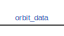
[diagram: root canvas - part 1/3, top left region]
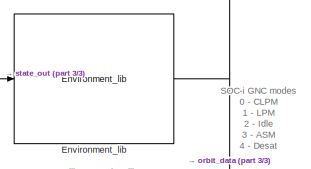
[diagram: root canvas - part 2/3, top center region]
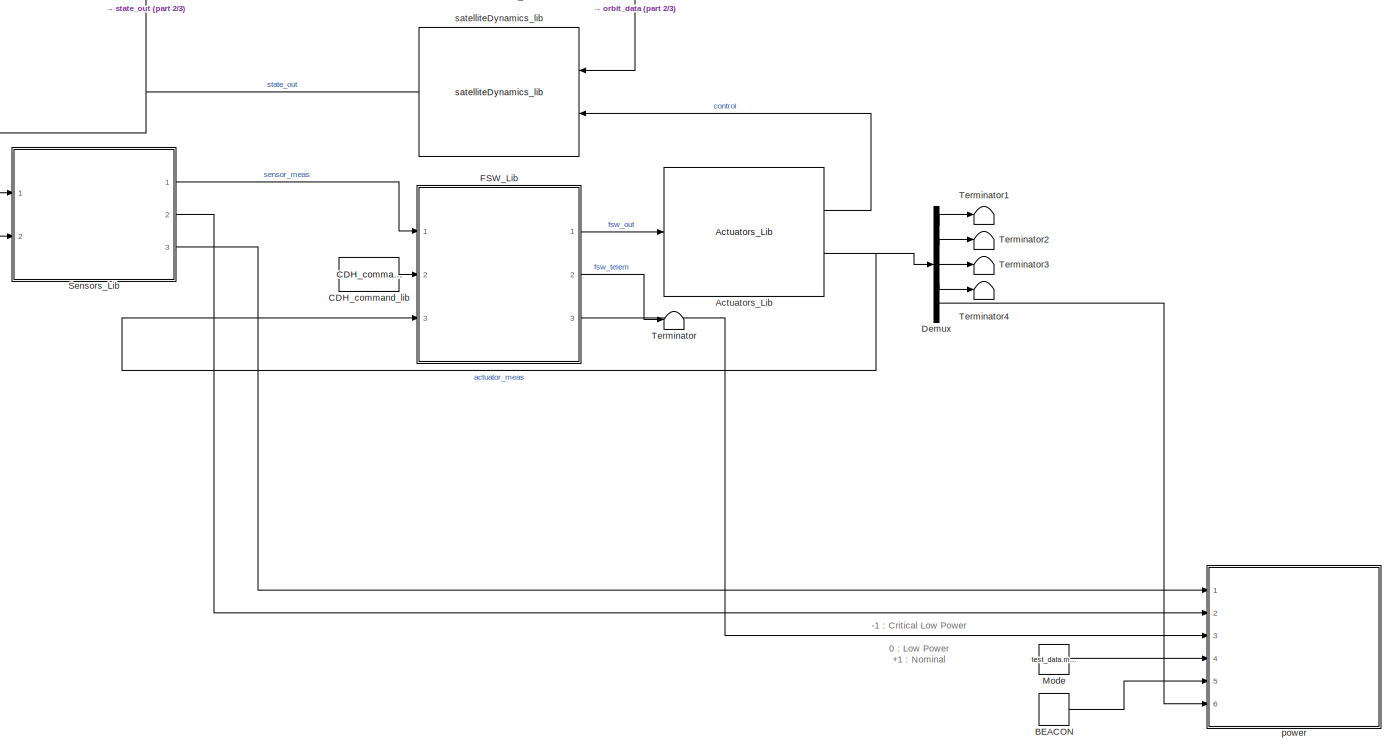
[diagram: root canvas - part 3/3, most of the canvas]
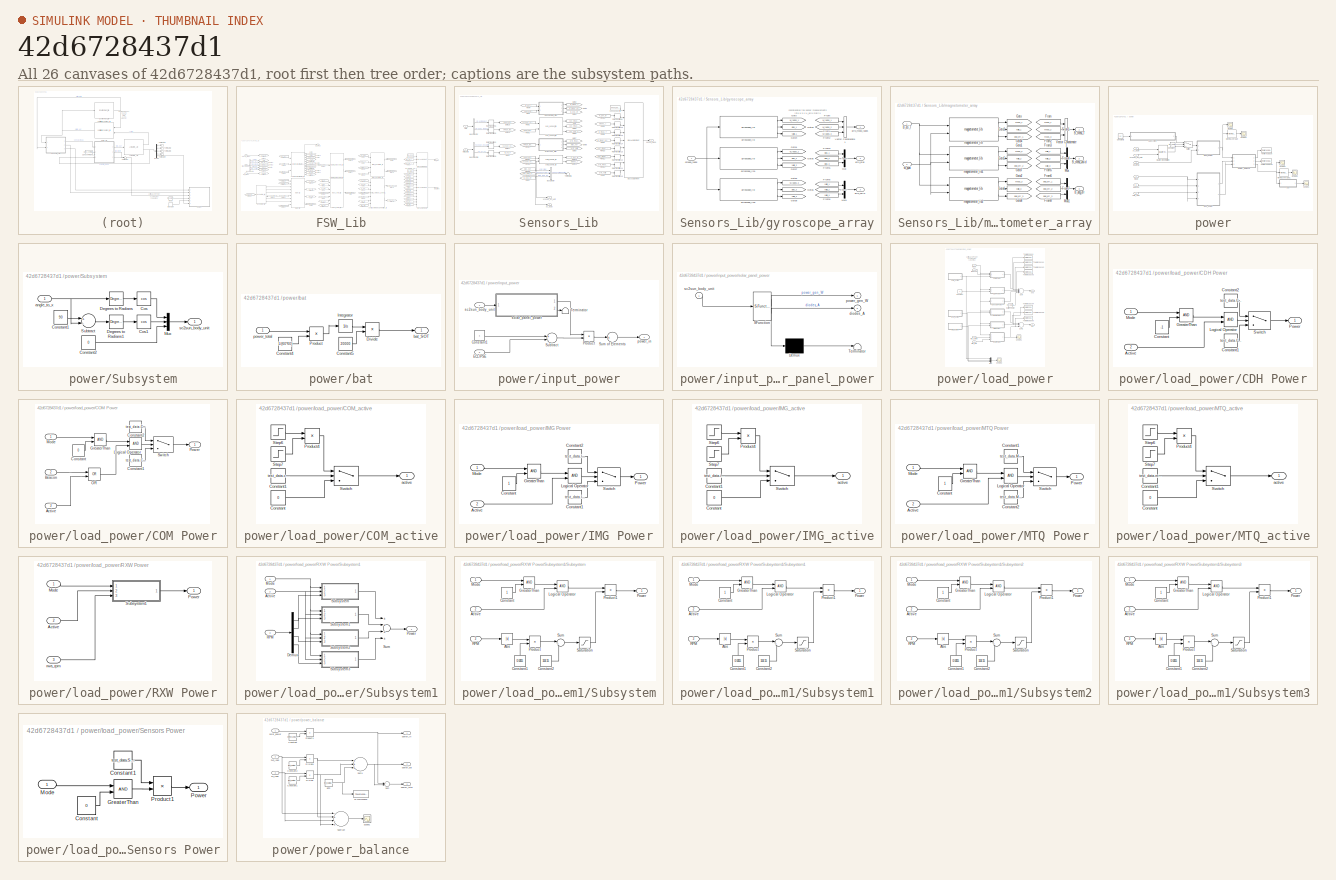
[diagram: thumbnail index - all 26 canvases of the model, root first then tree order]
MODEL slx_42d6728437d1
KIND model
CONFIG AbsTol = auto
CONFIG EnableMultiTasking = on
CONFIG FixedStep = simParams.sample_time_s
CONFIG MaxStep = auto
CONFIG MinStep = auto
CONFIG RelTol = 1e-3
CONFIG SampleTimeConstraint = Unconstrained
CONFIG Solver = FixedStepAuto
CONFIG SolverName = FixedStepAuto
CONFIG StartTime = 0.0
CONFIG StopTime = 20000
BLOCK [Reference] Actuators_Lib  REF=actuators_lib/Actuators_Lib  (lib defined in slx_c2decc952d1f)
  Ports = [1, 2]
  SourceBlock = actuators_lib/Actuators_Lib
  SourceType = SubSystem
BLOCK [DiscretePulseGenerator] BEACON
  Period = 60
  Ports = [0, 1]
  PulseType = Time based
  PulseWidth = 100 * (1.0 / 60)
BLOCK [Reference] CDH_command_lib  REF=CDH_command_lib/CDH_command_lib
  Ports = [0, 1]
  SourceBlock = CDH_command_lib/CDH_command_lib
BLOCK [Demux] Demux
  DisplayOption = bar
  Outputs = [5 4 1 1 4]
  Ports = [1, 5]
BLOCK [Reference] Environment_lib  REF=Environment_lib/Environment_lib
  Ports = [1, 1]
  SourceBlock = Environment_lib/Environment_lib
  SourceType = SubSystem
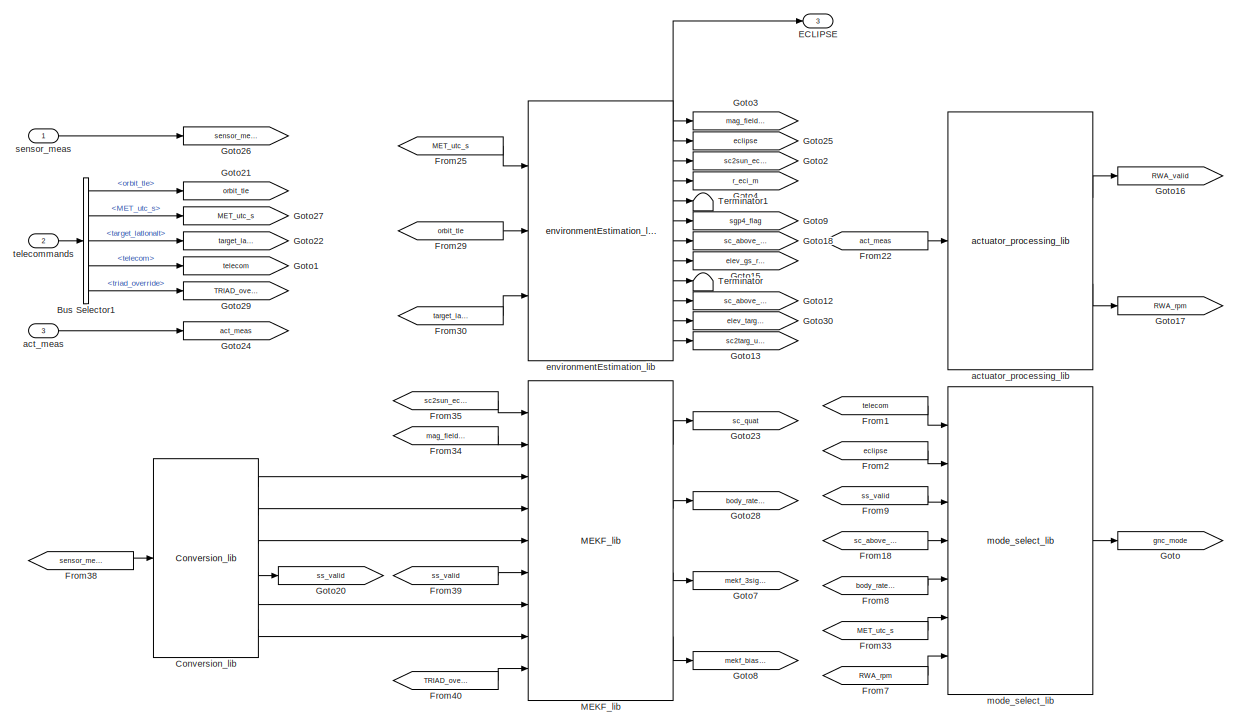
[diagram: FSW_Lib - part 1/2, left side, full height]
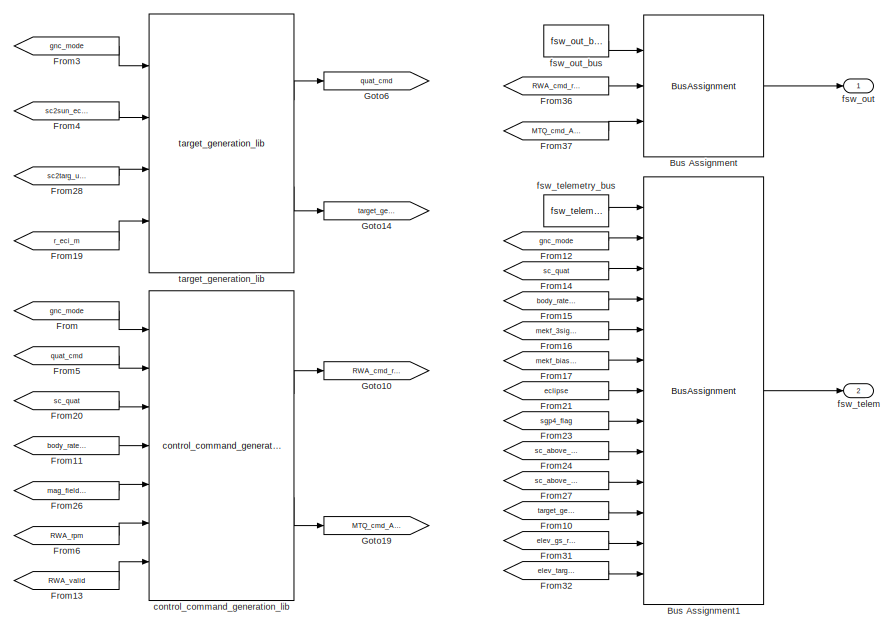
[diagram: FSW_Lib - part 2/2, right side, full height]
BLOCK [SubSystem] FSW_Lib
  AncestorBlock = FSW_Lib/FSW_Lib
  Ports = [3, 3]
  RequestExecContextInheritance = off
BLOCK [BusAssignment] FSW_Lib/Bus Assignment
  AssignedSignals = rwa_cmd_rpm,mtq_cmd_Am2
  Ports = [3, 1]
BLOCK [BusAssignment] FSW_Lib/Bus Assignment1
  AssignedSignals = gnc_mode,sc_quat,sc_body_rates_radps,mekf_3sigma_rad,mekf_bias_radps,eclipse,sgp4_flag,sc_above_gs,sc_above_targ,target_gen_flag,elev_gs_rad,elev_targ_rad
  Ports = [13, 1]
BLOCK [BusSelector] FSW_Lib/Bus Selector1
  OutputAsBus = off
  OutputSignals = orbit_tle,MET_utc_s,target_latlonalt,telecom,triad_override
  Ports = [1, 5]
BLOCK [Reference] FSW_Lib/Conversion_lib  REF=MEKF_Conversion_lib/Conversion_lib
  Ports = [1, 6]
  SourceBlock = MEKF_Conversion_lib/Conversion_lib
  SourceType = SubSystem
BLOCK [Outport] FSW_Lib/ECLIPSE
  IconDisplay = Port number
  Port = 3
BLOCK [From] FSW_Lib/From
  GotoTag = gnc_mode
BLOCK [From] FSW_Lib/From1
  GotoTag = telecom
BLOCK [From] FSW_Lib/From10
  GotoTag = target_gen_flag
BLOCK [From] FSW_Lib/From11
  GotoTag = body_rates_radps
BLOCK [From] FSW_Lib/From12
  GotoTag = gnc_mode
BLOCK [From] FSW_Lib/From13
  GotoTag = RWA_valid
BLOCK [From] FSW_Lib/From14
  GotoTag = sc_quat
BLOCK [From] FSW_Lib/From15
  GotoTag = body_rates_radps
BLOCK [From] FSW_Lib/From16
  GotoTag = mekf_3sigma_rad
BLOCK [From] FSW_Lib/From17
  GotoTag = mekf_bias_radps
BLOCK [From] FSW_Lib/From18
  GotoTag = sc_above_gs
BLOCK [From] FSW_Lib/From19
  GotoTag = r_eci_m
BLOCK [From] FSW_Lib/From2
  GotoTag = eclipse
BLOCK [From] FSW_Lib/From20
  GotoTag = sc_quat
BLOCK [From] FSW_Lib/From21
  GotoTag = eclipse
BLOCK [From] FSW_Lib/From22
  GotoTag = act_meas
BLOCK [From] FSW_Lib/From23
  GotoTag = sgp4_flag
BLOCK [From] FSW_Lib/From24
  GotoTag = sc_above_gs
BLOCK [From] FSW_Lib/From25
  GotoTag = MET_utc_s
BLOCK [From] FSW_Lib/From26
  GotoTag = mag_field_eci_T
BLOCK [From] FSW_Lib/From27
  GotoTag = sc_above_targ
BLOCK [From] FSW_Lib/From28
  GotoTag = sc2targ_unit_eci
BLOCK [From] FSW_Lib/From29
  GotoTag = orbit_tle
BLOCK [From] FSW_Lib/From3
  GotoTag = gnc_mode
BLOCK [From] FSW_Lib/From30
  GotoTag = target_latlonalt
BLOCK [From] FSW_Lib/From31
  GotoTag = elev_gs_rad
BLOCK [From] FSW_Lib/From32
  GotoTag = elev_targ_rad
BLOCK [From] FSW_Lib/From33
  GotoTag = MET_utc_s
BLOCK [From] FSW_Lib/From34
  GotoTag = mag_field_eci_T
BLOCK [From] FSW_Lib/From35
  GotoTag = sc2sun_eci_unit
BLOCK [From] FSW_Lib/From36
  GotoTag = RWA_cmd_rpm
BLOCK [From] FSW_Lib/From37
  GotoTag = MTQ_cmd_Am2
BLOCK [From] FSW_Lib/From38
  GotoTag = sensor_meas
BLOCK [From] FSW_Lib/From39
  GotoTag = ss_valid
BLOCK [From] FSW_Lib/From4
  GotoTag = sc2sun_eci_unit
BLOCK [From] FSW_Lib/From40
  GotoTag = TRIAD_override
BLOCK [From] FSW_Lib/From5
  GotoTag = quat_cmd
BLOCK [From] FSW_Lib/From6
  GotoTag = RWA_rpm
BLOCK [From] FSW_Lib/From7
  GotoTag = RWA_rpm
BLOCK [From] FSW_Lib/From8
  GotoTag = body_rates_radps
BLOCK [From] FSW_Lib/From9
  GotoTag = ss_valid
BLOCK [Goto] FSW_Lib/Goto
  GotoTag = gnc_mode
BLOCK [Goto] FSW_Lib/Goto1
  GotoTag = telecom
BLOCK [Goto] FSW_Lib/Goto10
  GotoTag = RWA_cmd_rpm
BLOCK [Goto] FSW_Lib/Goto12
  GotoTag = sc_above_targ
BLOCK [Goto] FSW_Lib/Goto13
  GotoTag = sc2targ_unit_eci
BLOCK [Goto] FSW_Lib/Goto14
  GotoTag = target_gen_flag
BLOCK [Goto] FSW_Lib/Goto15
  GotoTag = elev_gs_rad
BLOCK [Goto] FSW_Lib/Goto16
  GotoTag = RWA_valid
BLOCK [Goto] FSW_Lib/Goto17
  GotoTag = RWA_rpm
BLOCK [Goto] FSW_Lib/Goto18
  GotoTag = sc_above_gs
BLOCK [Goto] FSW_Lib/Goto19
  GotoTag = MTQ_cmd_Am2
BLOCK [Goto] FSW_Lib/Goto2
  GotoTag = sc2sun_eci_unit
BLOCK [Goto] FSW_Lib/Goto20
  GotoTag = ss_valid
BLOCK [Goto] FSW_Lib/Goto21
  GotoTag = orbit_tle
BLOCK [Goto] FSW_Lib/Goto22
  GotoTag = target_latlonalt
BLOCK [Goto] FSW_Lib/Goto23
  GotoTag = sc_quat
BLOCK [Goto] FSW_Lib/Goto24
  GotoTag = act_meas
BLOCK [Goto] FSW_Lib/Goto25
  GotoTag = eclipse
BLOCK [Goto] FSW_Lib/Goto26
  GotoTag = sensor_meas
BLOCK [Goto] FSW_Lib/Goto27
  GotoTag = MET_utc_s
BLOCK [Goto] FSW_Lib/Goto28
  GotoTag = body_rates_radps
BLOCK [Goto] FSW_Lib/Goto29
  GotoTag = TRIAD_override
BLOCK [Goto] FSW_Lib/Goto3
  GotoTag = mag_field_eci_T
BLOCK [Goto] FSW_Lib/Goto30
  GotoTag = elev_targ_rad
BLOCK [Goto] FSW_Lib/Goto4
  GotoTag = r_eci_m
BLOCK [Goto] FSW_Lib/Goto6
  GotoTag = quat_cmd
BLOCK [Goto] FSW_Lib/Goto7
  GotoTag = mekf_3sigma_rad
BLOCK [Goto] FSW_Lib/Goto8
  GotoTag = mekf_bias_radps
BLOCK [Goto] FSW_Lib/Goto9
  GotoTag = sgp4_flag
BLOCK [Reference] FSW_Lib/MEKF_lib  REF=MEKF_lib/MEKF_lib
  Ports = [9, 4]
  SourceBlock = MEKF_lib/MEKF_lib
  SourceType = SubSystem
BLOCK [Terminator] FSW_Lib/Terminator
BLOCK [Terminator] FSW_Lib/Terminator1
BLOCK [Inport] FSW_Lib/act_meas
  IconDisplay = Port number
  OutDataTypeStr = Bus: actuator_meas
  Port = 3
BLOCK [Reference] FSW_Lib/actuator_processing_lib  REF=actuator_processing_lib/actuator_processing_lib
  Ports = [1, 2]
  SourceBlock = actuator_processing_lib/actuator_processing_lib
  SourceType = SubSystem
BLOCK [Reference] FSW_Lib/control_command_generation_lib  REF=control_command_generation_lib/control_command_generation_lib
  Ports = [7, 2]
  SourceBlock = control_command_generation_lib/control_command_generation_lib
  SourceType = SubSystem
BLOCK [Reference] FSW_Lib/environmentEstimation_lib  REF=evironmentEstimation_lib/environmentEstimation_lib
  Ports = [3, 12]
  SourceBlock = evironmentEstimation_lib/environmentEstimation_lib
  SourceType = SubSystem
BLOCK [Outport] FSW_Lib/fsw_out
  IconDisplay = Port number
  OutDataTypeStr = Bus: fsw_out
BLOCK [Reference] FSW_Lib/fsw_out_bus  REF=fsw_out_bus/fsw_out_bus
  Ports = [0, 1]
  SourceBlock = fsw_out_bus/fsw_out_bus
  SourceType = SubSystem
BLOCK [Outport] FSW_Lib/fsw_telem
  IconDisplay = Port number
  OutDataTypeStr = Bus: fsw_telemetry
  Port = 2
BLOCK [Reference] FSW_Lib/fsw_telemetry_bus  REF=fsw_telemetry_bus/fsw_telemetry_bus
  Ports = [0, 1]
  SourceBlock = fsw_telemetry_bus/fsw_telemetry_bus
  SourceType = SubSystem
BLOCK [Reference] FSW_Lib/mode_select_lib  REF=mode_select_lib/mode_select_lib
  Ports = [7, 1]
  SourceBlock = mode_select_lib/mode_select_lib
  SourceType = SubSystem
BLOCK [Inport] FSW_Lib/sensor_meas
  IconDisplay = Port number
  OutDataTypeStr = Bus: sensor_bus
BLOCK [Reference] FSW_Lib/target_generation_lib  REF=target_gen_lib/target_generation_lib
  Ports = [4, 2]
  SourceBlock = target_gen_lib/target_generation_lib
  SourceType = SubSystem
BLOCK [Inport] FSW_Lib/telecommands
  IconDisplay = Port number
  OutDataTypeStr = Bus: cdh_data
  Port = 2
BLOCK [Constant] Mode
  Value = test_data.mode
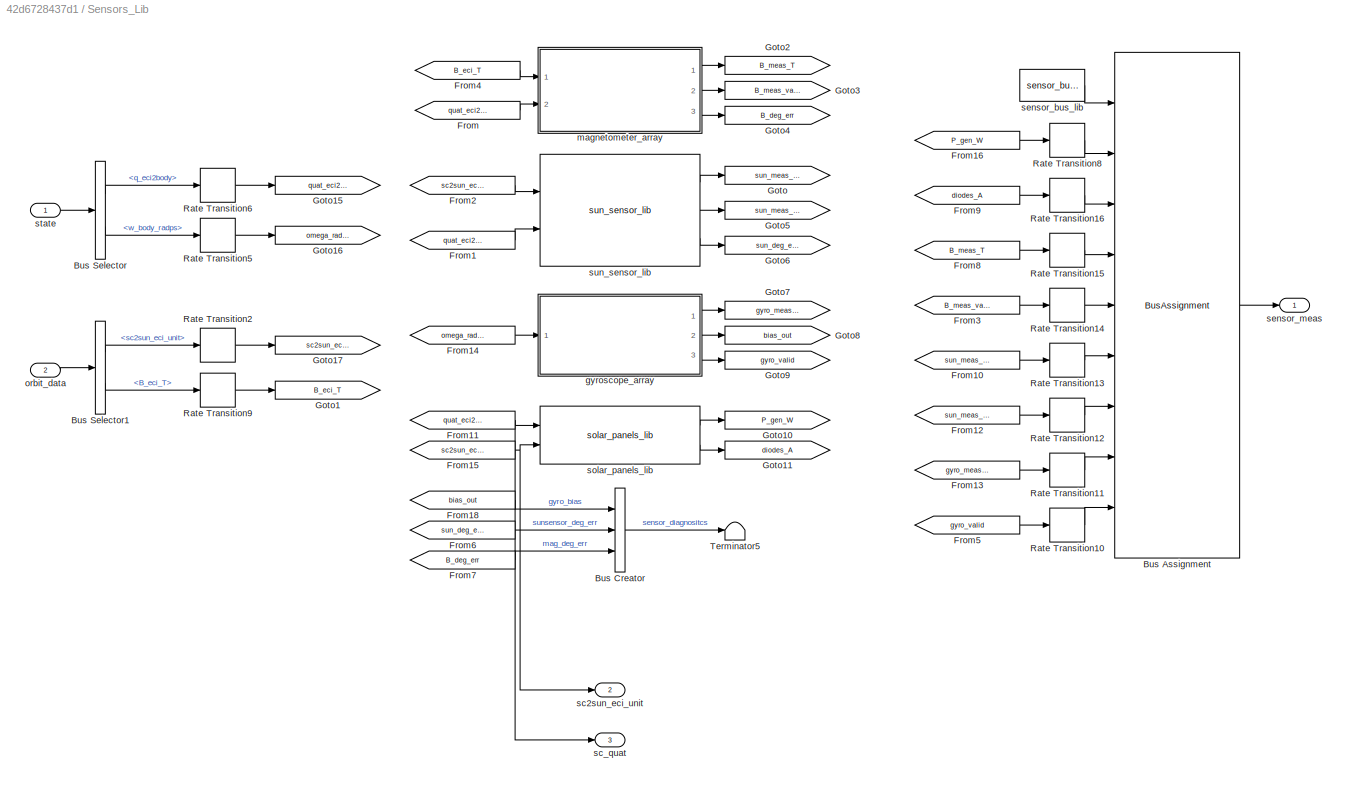
BLOCK [SubSystem] Sensors_Lib
  AncestorBlock = Sensors_Lib/Sensors_Lib
  Ports = [2, 3]
  RequestExecContextInheritance = off
BLOCK [BusAssignment] Sensors_Lib/Bus Assignment
  AssignedSignals = solar_panel_power_W,photodiodes_A,mag_body_T,mag_meas_valid,sun_meas_ss_deg,sun_meas_valid,gyro_body_radps,gyro_meas_valid
  Ports = [9, 1]
BLOCK [BusCreator] Sensors_Lib/Bus Creator
  DisplayOption = bar
  InheritFromInputs = on
  Inputs = 3
  Ports = [3, 1]
BLOCK [BusSelector] Sensors_Lib/Bus Selector
  OutputAsBus = off
  OutputSignals = q_eci2body,w_body_radps
  Ports = [1, 2]
BLOCK [BusSelector] Sensors_Lib/Bus Selector1
  OutputAsBus = off
  OutputSignals = sc2sun_eci_unit,B_eci_T
  Ports = [1, 2]
BLOCK [From] Sensors_Lib/From
  GotoTag = quat_eci2body
BLOCK [From] Sensors_Lib/From1
  GotoTag = quat_eci2body
BLOCK [From] Sensors_Lib/From10
  GotoTag = sun_meas_ss_deg
BLOCK [From] Sensors_Lib/From11
  GotoTag = quat_eci2body
BLOCK [From] Sensors_Lib/From12
  GotoTag = sun_meas_valid
BLOCK [From] Sensors_Lib/From13
  GotoTag = gyro_meas_radps
BLOCK [From] Sensors_Lib/From14
  GotoTag = omega_radps
BLOCK [From] Sensors_Lib/From15
  GotoTag = sc2sun_eci_unit
BLOCK [From] Sensors_Lib/From16
  GotoTag = P_gen_W
BLOCK [From] Sensors_Lib/From18
  GotoTag = bias_out
BLOCK [From] Sensors_Lib/From2
  GotoTag = sc2sun_eci_unit
BLOCK [From] Sensors_Lib/From3
  GotoTag = B_meas_valid
BLOCK [From] Sensors_Lib/From4
  GotoTag = B_eci_T
BLOCK [From] Sensors_Lib/From5
  GotoTag = gyro_valid
BLOCK [From] Sensors_Lib/From6
  GotoTag = sun_deg_err
BLOCK [From] Sensors_Lib/From7
  GotoTag = B_deg_err
BLOCK [From] Sensors_Lib/From8
  GotoTag = B_meas_T
BLOCK [From] Sensors_Lib/From9
  GotoTag = diodes_A
BLOCK [Goto] Sensors_Lib/Goto
  GotoTag = sun_meas_ss_deg
BLOCK [Goto] Sensors_Lib/Goto1
  GotoTag = B_eci_T
BLOCK [Goto] Sensors_Lib/Goto10
  GotoTag = P_gen_W
BLOCK [Goto] Sensors_Lib/Goto11
  GotoTag = diodes_A
BLOCK [Goto] Sensors_Lib/Goto15
  GotoTag = quat_eci2body
BLOCK [Goto] Sensors_Lib/Goto16
  GotoTag = omega_radps
BLOCK [Goto] Sensors_Lib/Goto17
  GotoTag = sc2sun_eci_unit
BLOCK [Goto] Sensors_Lib/Goto2
  GotoTag = B_meas_T
BLOCK [Goto] Sensors_Lib/Goto3
  GotoTag = B_meas_valid
BLOCK [Goto] Sensors_Lib/Goto4
  GotoTag = B_deg_err
BLOCK [Goto] Sensors_Lib/Goto5
  GotoTag = sun_meas_valid
BLOCK [Goto] Sensors_Lib/Goto6
  GotoTag = sun_deg_err
BLOCK [Goto] Sensors_Lib/Goto7
  GotoTag = gyro_meas_radps
BLOCK [Goto] Sensors_Lib/Goto8
  GotoTag = bias_out
BLOCK [Goto] Sensors_Lib/Goto9
  GotoTag = gyro_valid
BLOCK [RateTransition] Sensors_Lib/Rate Transition10
  OutPortSampleTime = simParams.sensors.sample_time_s
BLOCK [RateTransition] Sensors_Lib/Rate Transition11
  OutPortSampleTime = simParams.sensors.sample_time_s
BLOCK [RateTransition] Sensors_Lib/Rate Transition12
  OutPortSampleTime = simParams.sensors.sample_time_s
BLOCK [RateTransition] Sensors_Lib/Rate Transition13
  OutPortSampleTime = simParams.sensors.sample_time_s
BLOCK [RateTransition] Sensors_Lib/Rate Transition14
  OutPortSampleTime = simParams.sensors.sample_time_s
BLOCK [RateTransition] Sensors_Lib/Rate Transition15
  OutPortSampleTime = simParams.sensors.sample_time_s
BLOCK [RateTransition] Sensors_Lib/Rate Transition16
  OutPortSampleTime = simParams.sensors.sample_time_s
BLOCK [RateTransition] Sensors_Lib/Rate Transition2
  OutPortSampleTime = simParams.sensors.sample_time_s
BLOCK [RateTransition] Sensors_Lib/Rate Transition5
  OutPortSampleTime = simParams.sensors.sample_time_s
BLOCK [RateTransition] Sensors_Lib/Rate Transition6
  OutPortSampleTime = simParams.sensors.sample_time_s
BLOCK [RateTransition] Sensors_Lib/Rate Transition8
  OutPortSampleTime = simParams.sensors.sample_time_s
BLOCK [RateTransition] Sensors_Lib/Rate Transition9
  OutPortSampleTime = simParams.sensors.sample_time_s
BLOCK [Terminator] Sensors_Lib/Terminator5
BLOCK [SubSystem] Sensors_Lib/gyroscope_array
  Ports = [1, 3]
  RequestExecContextInheritance = off
BLOCK [From] Sensors_Lib/gyroscope_array/From
  GotoTag = w_radps_1
BLOCK [From] Sensors_Lib/gyroscope_array/From1
  GotoTag = w_radps_2
BLOCK [From] Sensors_Lib/gyroscope_array/From2
  GotoTag = w_radps_3
BLOCK [From] Sensors_Lib/gyroscope_array/From3
  GotoTag = bias_1
BLOCK [From] Sensors_Lib/gyroscope_array/From4
  GotoTag = bias_2
BLOCK [From] Sensors_Lib/gyroscope_array/From5
  GotoTag = bias_3
BLOCK [From] Sensors_Lib/gyroscope_array/From6
  GotoTag = valid_1
BLOCK [From] Sensors_Lib/gyroscope_array/From7
  GotoTag = valid_2
BLOCK [From] Sensors_Lib/gyroscope_array/From8
  GotoTag = valid_3
BLOCK [Goto] Sensors_Lib/gyroscope_array/Goto
  GotoTag = w_radps_1
BLOCK [Goto] Sensors_Lib/gyroscope_array/Goto1
  GotoTag = w_radps_2
BLOCK [Goto] Sensors_Lib/gyroscope_array/Goto2
  GotoTag = w_radps_3
BLOCK [Goto] Sensors_Lib/gyroscope_array/Goto3
  GotoTag = bias_1
BLOCK [Goto] Sensors_Lib/gyroscope_array/Goto4
  GotoTag = valid_1
BLOCK [Goto] Sensors_Lib/gyroscope_array/Goto5
  GotoTag = bias_2
BLOCK [Goto] Sensors_Lib/gyroscope_array/Goto6
  GotoTag = bias_3
BLOCK [Goto] Sensors_Lib/gyroscope_array/Goto7
  GotoTag = valid_2
BLOCK [Goto] Sensors_Lib/gyroscope_array/Goto8
  GotoTag = valid_3
BLOCK [Mux] Sensors_Lib/gyroscope_array/Mux
  DisplayOption = bar
  Inputs = 3
  Ports = [3, 1]
BLOCK [Mux] Sensors_Lib/gyroscope_array/Mux1
  DisplayOption = bar
  Inputs = 3
  Ports = [3, 1]
BLOCK [Concatenate] Sensors_Lib/gyroscope_array/Vector Concatenate1
  ConcatenateDimension = 2
  Mode = Multidimensional array
  NumInputs = 3
  Ports = [3, 1]
BLOCK [Outport] Sensors_Lib/gyroscope_array/gyro_bias
  IconDisplay = Port number
  Port = 2
BLOCK [Outport] Sensors_Lib/gyroscope_array/gyro_meas_radps
  IconDisplay = Port number
BLOCK [Outport] Sensors_Lib/gyroscope_array/gyro_valid
  IconDisplay = Port number
  Port = 3
BLOCK [Reference] Sensors_Lib/gyroscope_array/gyroscope_lib  REF=gyroscope_lib/gyroscope_lib
  Ports = [1, 3]
  SourceBlock = gyroscope_lib/gyroscope_lib
BLOCK [Reference] Sensors_Lib/gyroscope_array/gyroscope_lib1  REF=gyroscope_lib/gyroscope_lib
  Ports = [1, 3]
  SourceBlock = gyroscope_lib/gyroscope_lib
BLOCK [Reference] Sensors_Lib/gyroscope_array/gyroscope_lib2  REF=gyroscope_lib/gyroscope_lib
  Ports = [1, 3]
  SourceBlock = gyroscope_lib/gyroscope_lib
BLOCK [Inport] Sensors_Lib/gyroscope_array/omega_radps
  IconDisplay = Port number
BLOCK [SubSystem] Sensors_Lib/magnetometer_array
  Ports = [2, 3]
  RequestExecContextInheritance = off
BLOCK [Outport] Sensors_Lib/magnetometer_array/B_deg_err
  IconDisplay = Port number
  Port = 3
BLOCK [Inport] Sensors_Lib/magnetometer_array/B_eci_T
  IconDisplay = Port number
BLOCK [Outport] Sensors_Lib/magnetometer_array/B_meas_T
  IconDisplay = Port number
BLOCK [Outport] Sensors_Lib/magnetometer_array/B_meas_valid
  IconDisplay = Port number
  Port = 2
BLOCK [From] Sensors_Lib/magnetometer_array/From
  GotoTag = meas_1
BLOCK [From] Sensors_Lib/magnetometer_array/From1
  GotoTag = meas_2
BLOCK [From] Sensors_Lib/magnetometer_array/From2
  GotoTag = meas_3
BLOCK [From] Sensors_Lib/magnetometer_array/From3
  GotoTag = valid_1
BLOCK [From] Sensors_Lib/magnetometer_array/From4
  GotoTag = valid_2
BLOCK [From] Sensors_Lib/magnetometer_array/From5
  GotoTag = valid_3
BLOCK [From] Sensors_Lib/magnetometer_array/From6
  GotoTag = deg_err_1
BLOCK [From] Sensors_Lib/magnetometer_array/From7
  GotoTag = deg_err_2
BLOCK [From] Sensors_Lib/magnetometer_array/From8
  GotoTag = deg_err_3
BLOCK [Goto] Sensors_Lib/magnetometer_array/Goto
  GotoTag = meas_1
BLOCK [Goto] Sensors_Lib/magnetometer_array/Goto1
  GotoTag = meas_2
BLOCK [Goto] Sensors_Lib/magnetometer_array/Goto2
  GotoTag = meas_3
BLOCK [Goto] Sensors_Lib/magnetometer_array/Goto3
  GotoTag = valid_1
BLOCK [Goto] Sensors_Lib/magnetometer_array/Goto4
  GotoTag = deg_err_1
BLOCK [Goto] Sensors_Lib/magnetometer_array/Goto5
  GotoTag = valid_2
BLOCK [Goto] Sensors_Lib/magnetometer_array/Goto6
  GotoTag = valid_3
BLOCK [Goto] Sensors_Lib/magnetometer_array/Goto7
  GotoTag = deg_err_2
BLOCK [Goto] Sensors_Lib/magnetometer_array/Goto8
  GotoTag = deg_err_3
BLOCK [Mux] Sensors_Lib/magnetometer_array/Mux
  DisplayOption = bar
  Inputs = 3
  Ports = [3, 1]
BLOCK [Mux] Sensors_Lib/magnetometer_array/Mux1
  DisplayOption = bar
  Inputs = 3
  Ports = [3, 1]
BLOCK [Concatenate] Sensors_Lib/magnetometer_array/Vector Concatenate1
  ConcatenateDimension = 2
  Mode = Multidimensional array
  NumInputs = 3
  Ports = [3, 1]
BLOCK [Reference] Sensors_Lib/magnetometer_array/magnetometer_lib  REF=magnetometer_lib/magnetometer_lib
  Ports = [2, 3]
  SourceBlock = magnetometer_lib/magnetometer_lib
BLOCK [Reference] Sensors_Lib/magnetometer_array/magnetometer_lib1  REF=magnetometer_lib/magnetometer_lib
  Ports = [2, 3]
  SourceBlock = magnetometer_lib/magnetometer_lib
BLOCK [Reference] Sensors_Lib/magnetometer_array/magnetometer_lib2  REF=magnetometer_lib/magnetometer_lib
  Ports = [2, 3]
  SourceBlock = magnetometer_lib/magnetometer_lib
BLOCK [Inport] Sensors_Lib/magnetometer_array/sc_quat
  IconDisplay = Port number
  Port = 2
BLOCK [Inport] Sensors_Lib/orbit_data
  IconDisplay = Port number
  OutDataTypeStr = Bus: orbit_data
  Port = 2
BLOCK [Outport] Sensors_Lib/sc2sun_eci_unit
  IconDisplay = Port number
  Port = 2
BLOCK [Outport] Sensors_Lib/sc_quat
  IconDisplay = Port number
  Port = 3
BLOCK [Reference] Sensors_Lib/sensor_bus_lib  REF=sensor_bus/sensor_bus_lib
  Ports = [0, 1]
  SourceBlock = sensor_bus/sensor_bus_lib
  SourceType = SubSystem
BLOCK [Outport] Sensors_Lib/sensor_meas
  IconDisplay = Port number
  OutDataTypeStr = Bus: sensor_bus
BLOCK [Reference] Sensors_Lib/solar_panels_lib  REF=solar_panels_lib/solar_panels_lib
  Ports = [2, 2]
  SourceBlock = solar_panels_lib/solar_panels_lib
  SourceType = SubSystem
BLOCK [Inport] Sensors_Lib/state
  IconDisplay = Port number
  OutDataTypeStr = Bus: state
BLOCK [Reference] Sensors_Lib/sun_sensor_lib   REF=sun_sensor_lib/sun_sensor_lib

  Ports = [2, 3]
  SourceBlock = sun_sensor_lib/sun_sensor_lib
  SourceType = SubSystem
BLOCK [Terminator] Terminator
BLOCK [Terminator] Terminator1
BLOCK [Terminator] Terminator2
BLOCK [Terminator] Terminator3
BLOCK [Terminator] Terminator4
BLOCK [SubSystem] power
  Ports = [6]
  RequestExecContextInheritance = off
BLOCK [Constant] power/Constant
  Value = test_data.fixed_attitude
BLOCK [Constant] power/Constant3
  Value = 10
BLOCK [Inport] power/ECLIPSE
  IconDisplay = Port number
  Port = 3
BLOCK [Reference] power/Moving Average  REF=dspstat3/Moving
Average
  Ports = [1, 1]
  SourceBlock = dspstat3/Moving\nAverage
  SourceProductBaseCode = DS
  SourceProductName = DSP System Toolbox
  SourceType = dsp.simulink.MovingAverage
BLOCK [Reference] power/Moving Average1  REF=dspstat3/Moving
Average
  Ports = [1, 1]
  SourceBlock = dspstat3/Moving\nAverage
  SourceProductBaseCode = DS
  SourceProductName = DSP System Toolbox
  SourceType = dsp.simulink.MovingAverage
BLOCK [Reference] power/Quaternion Rotation  REF=aerolibutil/Quaternion
Rotation
  Ports = [2, 1]
  SourceBlock = aerolibutil/Quaternion\nRotation
  SourceProductBaseCode = AE
  SourceProductName = Aerospace Blockset
  SourceType = Quaternion Rotation
BLOCK [Scope] power/Scope
  Floating = off
  NumInputPorts = 1
  Ports = [1]
  ScopeSpecificationString = Simulink.scopes.TimeScopeBlockCfg('CurrentConfiguration', extmgr.ConfigurationSet(extmgr.Configuration('Core','General UI',true,'FigureColor',[1 1 1]),extmgr.Configuration('Core','Source UI',true),extmgr.Configuration('Sources','WiredSimulink',true,'DataLoggingVariableName','ScopeData2'),extmgr.Configuration('Visuals','Time Domain',true,'SerializedDisplays',{struct('MinYLimReal','-927.29145','MaxY...<+1653ch>
BLOCK [Scope] power/Scope1
  Floating = off
  NumInputPorts = 1
  Ports = [1]
  ScopeSpecificationString = Simulink.scopes.TimeScopeBlockCfg('CurrentConfiguration', extmgr.ConfigurationSet(extmgr.Configuration('Core','General UI',true,'FigureColor',[1 1 1]),extmgr.Configuration('Core','Source UI',true),extmgr.Configuration('Sources','WiredSimulink',true,'DataLoggingVariableName','ScopeData1'),extmgr.Configuration('Visuals','Time Domain',true,'SerializedDisplays',{struct('MinYLimReal','0.93294','MaxYLim...<+1556ch>
BLOCK [Scope] power/Scope2
  Floating = off
  NumInputPorts = 1
  Ports = [1]
  ScopeSpecificationString = Simulink.scopes.TimeScopeBlockCfg('CurrentConfiguration', extmgr.ConfigurationSet(extmgr.Configuration('Core','General UI',true,'FigureColor',[1 1 1]),extmgr.Configuration('Core','Source UI',true),extmgr.Configuration('Sources','WiredSimulink',true,'DataLoggingVariableName','ScopeData3'),extmgr.Configuration('Visuals','Time Domain',true,'SerializedDisplays',{struct('MinYLimReal','-6265.12875','Max...<+1636ch>
BLOCK [Scope] power/Scope3
  Floating = off
  NumInputPorts = 1
  Ports = [1]
  ScopeSpecificationString = Simulink.scopes.TimeScopeBlockCfg('CurrentConfiguration', extmgr.ConfigurationSet(extmgr.Configuration('Core','General UI',true,'FigureColor',[1 1 1]),extmgr.Configuration('Core','Source UI',true),extmgr.Configuration('Sources','WiredSimulink',true,'DataLoggingVariableName','ScopeData4'),extmgr.Configuration('Visuals','Time Domain',true,'SerializedDisplays',{struct('MinYLimReal','-698.22347','MaxY...<+1627ch>
BLOCK [Scope] power/Scope4
  Floating = off
  NumInputPorts = 1
  Ports = [1]
  ScopeSpecificationString = Simulink.scopes.TimeScopeBlockCfg('CurrentConfiguration', extmgr.ConfigurationSet(extmgr.Configuration('Core','General UI',true,'FigureColor',[1 1 1]),extmgr.Configuration('Core','Source UI',true),extmgr.Configuration('Sources','WiredSimulink',true,'DataLoggingVariableName','ScopeData5'),extmgr.Configuration('Visuals','Time Domain',true,'SerializedDisplays',{struct('MinYLimReal','-6630.94355','Max...<+1634ch>
BLOCK [SubSystem] power/Subsystem
  Ports = [1, 1]
  RequestExecContextInheritance = off
BLOCK [Constant] power/Subsystem/Constant1
  Value = 90
BLOCK [Constant] power/Subsystem/Constant2
  Value = 0
BLOCK [Trigonometry] power/Subsystem/Cos
  Operator = cos
  Ports = [1, 1]
BLOCK [Trigonometry] power/Subsystem/Cos1
  Operator = cos
  Ports = [1, 1]
BLOCK [Reference] power/Subsystem/Degrees to Radians  REF=simulink_extras/Transformations/Degrees to
Radians
  Ports = [1, 1]
  SourceBlock = simulink_extras/Transformations/Degrees to\nRadians
  SourceProductBaseCode = SL
  SourceProductName = Simulink
  SourceType = DegreesToRadians
BLOCK [Reference] power/Subsystem/Degrees to Radians1  REF=simulink_extras/Transformations/Degrees to
Radians
  Ports = [1, 1]
  SourceBlock = simulink_extras/Transformations/Degrees to\nRadians
  SourceProductBaseCode = SL
  SourceProductName = Simulink
  SourceType = DegreesToRadians
BLOCK [Mux] power/Subsystem/Mux
  DisplayOption = bar
  Inputs = 3
  Ports = [3, 1]
BLOCK [Sum] power/Subsystem/Subtract
  InputSameDT = off
  Inputs = +-
  OutDataTypeStr = Inherit: Inherit via internal rule
  Ports = [2, 1]
  SaturateOnIntegerOverflow = off
BLOCK [Inport] power/Subsystem/angle_to_x
  IconDisplay = Port number
BLOCK [Outport] power/Subsystem/sc2sun_body_unit
  IconDisplay = Port number
BLOCK [Switch] power/Switch
  Criteria = u2 > Threshold
  InputSameDT = off
  SaturateOnIntegerOverflow = off
BLOCK [ToWorkspace] power/To Workspace
  FixptAsFi = on
  MaxDataPoints = inf
  Ports = [1]
  SampleTime = -1
  VariableName = p_in
BLOCK [ToWorkspace] power/To Workspace1
  FixptAsFi = on
  MaxDataPoints = inf
  Ports = [1]
  SampleTime = -1
  VariableName = p_out
BLOCK [SubSystem] power/bat
  Ports = [1, 1]
  RequestExecContextInheritance = off
BLOCK [Constant] power/bat/Constant4
  Value = 1/(60*60)
BLOCK [Constant] power/bat/Constant5
  Value = 20000
BLOCK [Product] power/bat/Divide
  InputSameDT = off
  Inputs = */
  OutDataTypeStr = Inherit: Inherit via internal rule
  Ports = [2, 1]
  RndMeth = Floor
  SaturateOnIntegerOverflow = off
BLOCK [Integrator] power/bat/Integrator
  InitialCondition = 20000
  LimitOutput = on
  LowerSaturationLimit = 0
  Ports = [1, 1]
  UpperSaturationLimit = 20000
BLOCK [Product] power/bat/Product
  InputSameDT = off
  OutDataTypeStr = Inherit: Inherit via internal rule
  Ports = [2, 1]
  RndMeth = Floor
  SaturateOnIntegerOverflow = off
BLOCK [Outport] power/bat/bat_SOT
  IconDisplay = Port number
BLOCK [Inport] power/bat/power_total
  IconDisplay = Port number
BLOCK [Inport] power/beacon
  IconDisplay = Port number
  Port = 5
BLOCK [SubSystem] power/input_power
  Ports = [2, 1]
  RequestExecContextInheritance = off
BLOCK [Constant] power/input_power/Constant1
BLOCK [Inport] power/input_power/ECLIPSE
  IconDisplay = Port number
  Port = 2
BLOCK [Product] power/input_power/Product
  InputSameDT = off
  OutDataTypeStr = Inherit: Inherit via internal rule
  Ports = [2, 1]
  RndMeth = Floor
  SaturateOnIntegerOverflow = off
BLOCK [Sum] power/input_power/Subtract
  InputSameDT = off
  Inputs = +-
  OutDataTypeStr = Inherit: Inherit via internal rule
  Ports = [2, 1]
  SaturateOnIntegerOverflow = off
BLOCK [Sum] power/input_power/Sum of Elements
  InputSameDT = off
  Inputs = +
  OutDataTypeStr = Inherit: Inherit via internal rule
  Ports = [1, 1]
  SaturateOnIntegerOverflow = off
BLOCK [Terminator] power/input_power/Terminator
BLOCK [Outport] power/input_power/power_in
  IconDisplay = Port number
BLOCK [Inport] power/input_power/sc2sun_body_unit
  IconDisplay = Port number
BLOCK [SubSystem] power/input_power/solar_panel_power
  ErrorFcn = Stateflow.Translate.translate
  PermitHierarchicalResolution = ExplicitOnly
  Ports = [1, 2]
  RequestExecContextInheritance = off
  SFBlockType = MATLAB Function
  TreatAsAtomicUnit = on
BLOCK [Demux] power/input_power/solar_panel_power/ Demux 
  Outputs = 1
  Ports = [1, 1]
BLOCK [S-Function] power/input_power/solar_panel_power/ SFunction 
  EnableBusSupport = on
  FunctionName = sf_sfun
  Parameters = simParams
  PortCounts = [1 3]
  Ports = [1, 3]
  SFcnIsStateOwnerBlock = off
  SFunctionDeploymentMode = off
  Tag = Stateflow S-Function Main_Sim 2
BLOCK [Terminator] power/input_power/solar_panel_power/ Terminator 
BLOCK [Outport] power/input_power/solar_panel_power/diodes_A
  IconDisplay = Port number
  Port = 2
BLOCK [Outport] power/input_power/solar_panel_power/power_gen_W
  IconDisplay = Port number
BLOCK [Inport] power/input_power/solar_panel_power/sc2sun_body_unit
  IconDisplay = Port number
BLOCK [SubSystem] power/load_power
  Ports = [4, 2]
  RequestExecContextInheritance = off
BLOCK [Outport] power/load_power/3V3
  IconDisplay = Port number
BLOCK [Outport] power/load_power/5V
  IconDisplay = Port number
  Port = 2
BLOCK [Inport] power/load_power/Beacon
  IconDisplay = Port number
  Port = 2
BLOCK [SubSystem] power/load_power/CDH Power
  Ports = [2, 1]
  RequestExecContextInheritance = off
BLOCK [Inport] power/load_power/CDH Power/Active
  IconDisplay = Port number
  Port = 2
BLOCK [Constant] power/load_power/CDH Power/Constant
  Value = -1
BLOCK [Constant] power/load_power/CDH Power/Constant1
  Value = test_data.CDH_Idle
BLOCK [Constant] power/load_power/CDH Power/Constant2
  Value = test_data.CDH_Active
BLOCK [RelationalOperator] power/load_power/CDH Power/GreaterThan
  InputSameDT = off
  OutDataTypeStr = boolean
  Ports = [2, 1]
  RndMeth = Simplest
BLOCK [Logic] power/load_power/CDH Power/Logical Operator
  AllPortsSameDT = off
  OutDataTypeStr = boolean
  Ports = [2, 1]
BLOCK [Inport] power/load_power/CDH Power/Mode
  IconDisplay = Port number
BLOCK [Outport] power/load_power/CDH Power/Power
  IconDisplay = Port number
  VectorParamsAs1DForOutWhenUnconnected = on
BLOCK [Switch] power/load_power/CDH Power/Switch
  Criteria = u2 > Threshold
  InputSameDT = off
  SaturateOnIntegerOverflow = off
BLOCK [SubSystem] power/load_power/COM Power
  Ports = [3, 1]
  RequestExecContextInheritance = off
BLOCK [Inport] power/load_power/COM Power/Active 
  IconDisplay = Port number
  Port = 3
BLOCK [Inport] power/load_power/COM Power/Beacon
  IconDisplay = Port number
  Port = 2
BLOCK [Constant] power/load_power/COM Power/Constant
  Value = 0
BLOCK [Constant] power/load_power/COM Power/Constant1
  Value = test_data.COM_RX
BLOCK [Constant] power/load_power/COM Power/Constant2
  Value = test_data.COM_TX+test_data.COM_RX
BLOCK [RelationalOperator] power/load_power/COM Power/GreaterThan
  InputSameDT = off
  OutDataTypeStr = boolean
  Ports = [2, 1]
  RndMeth = Simplest
BLOCK [Logic] power/load_power/COM Power/Logical Operator
  AllPortsSameDT = off
  OutDataTypeStr = boolean
  Ports = [2, 1]
BLOCK [Inport] power/load_power/COM Power/Mode
  IconDisplay = Port number
BLOCK [Logic] power/load_power/COM Power/OR
  AllPortsSameDT = off
  IconShape = distinctive
  Operator = OR
  OutDataTypeStr = boolean
  Ports = [2, 1]
BLOCK [Outport] power/load_power/COM Power/Power
  IconDisplay = Port number
  VectorParamsAs1DForOutWhenUnconnected = on
BLOCK [Switch] power/load_power/COM Power/Switch
  Criteria = u2 > Threshold
  InputSameDT = off
  SaturateOnIntegerOverflow = off
BLOCK [SubSystem] power/load_power/COM_active
  Ports = [0, 1]
  RequestExecContextInheritance = off
BLOCK [Constant] power/load_power/COM_active/Constant
  Value = 0
BLOCK [Constant] power/load_power/COM_active/Constant1
  Value = test_data.com_en
BLOCK [Product] power/load_power/COM_active/Product4
  InputSameDT = off
  OutDataTypeStr = Inherit: Inherit via internal rule
  Ports = [2, 1]
  RndMeth = Floor
  SaturateOnIntegerOverflow = off
BLOCK [Step] power/load_power/COM_active/Step6
  SampleTime = 0
  Time = test_data.com_start
BLOCK [Step] power/load_power/COM_active/Step7
  After = 0
  Before = 1
  SampleTime = 0
  Time = test_data.com_end
BLOCK [Switch] power/load_power/COM_active/Switch
  Criteria = u2 > Threshold
  InputSameDT = off
  SaturateOnIntegerOverflow = off
BLOCK [Outport] power/load_power/COM_active/active
  IconDisplay = Port number
BLOCK [Constant] power/load_power/Constant
BLOCK [SubSystem] power/load_power/IMG Power
  Ports = [2, 1]
  RequestExecContextInheritance = off
BLOCK [Inport] power/load_power/IMG Power/Active
  IconDisplay = Port number
  Port = 2
BLOCK [Constant] power/load_power/IMG Power/Constant
BLOCK [Constant] power/load_power/IMG Power/Constant1
  Value = test_data.IMG_Idle
BLOCK [Constant] power/load_power/IMG Power/Constant2
  Value = test_data.IMG_Active
BLOCK [RelationalOperator] power/load_power/IMG Power/GreaterThan
  InputSameDT = off
  OutDataTypeStr = boolean
  Ports = [2, 1]
  RndMeth = Simplest
BLOCK [Logic] power/load_power/IMG Power/Logical Operator
  AllPortsSameDT = off
  OutDataTypeStr = boolean
  Ports = [2, 1]
BLOCK [Inport] power/load_power/IMG Power/Mode
  IconDisplay = Port number
BLOCK [Outport] power/load_power/IMG Power/Power
  IconDisplay = Port number
  VectorParamsAs1DForOutWhenUnconnected = on
BLOCK [Switch] power/load_power/IMG Power/Switch
  Criteria = u2 > Threshold
  InputSameDT = off
  SaturateOnIntegerOverflow = off
BLOCK [SubSystem] power/load_power/IMG_active
  Ports = [0, 1]
  RequestExecContextInheritance = off
BLOCK [Constant] power/load_power/IMG_active/Constant
  Value = 0
BLOCK [Constant] power/load_power/IMG_active/Constant1
  Value = test_data.img_en
BLOCK [Product] power/load_power/IMG_active/Product4
  InputSameDT = off
  OutDataTypeStr = Inherit: Inherit via internal rule
  Ports = [2, 1]
  RndMeth = Floor
  SaturateOnIntegerOverflow = off
BLOCK [Step] power/load_power/IMG_active/Step6
  SampleTime = 0
  Time = test_data.img_start
BLOCK [Step] power/load_power/IMG_active/Step7
  After = 0
  Before = 1
  SampleTime = 0
  Time = test_data.img_end
BLOCK [Switch] power/load_power/IMG_active/Switch
  Criteria = u2 > Threshold
  InputSameDT = off
  SaturateOnIntegerOverflow = off
BLOCK [Outport] power/load_power/IMG_active/active
  IconDisplay = Port number
BLOCK [SubSystem] power/load_power/MTQ Power
  Ports = [2, 1]
  RequestExecContextInheritance = off
BLOCK [Inport] power/load_power/MTQ Power/Active
  IconDisplay = Port number
  Port = 2
BLOCK [Constant] power/load_power/MTQ Power/Constant
BLOCK [Constant] power/load_power/MTQ Power/Constant1
  Value = test_data.MTQ_Active
BLOCK [Constant] power/load_power/MTQ Power/Constant2
  Value = test_data.MTQ_Idle
BLOCK [RelationalOperator] power/load_power/MTQ Power/GreaterThan
  InputSameDT = off
  OutDataTypeStr = boolean
  Ports = [2, 1]
  RndMeth = Simplest
BLOCK [Logic] power/load_power/MTQ Power/Logical Operator
  AllPortsSameDT = off
  OutDataTypeStr = boolean
  Ports = [2, 1]
BLOCK [Inport] power/load_power/MTQ Power/Mode
  IconDisplay = Port number
BLOCK [Outport] power/load_power/MTQ Power/Power
  IconDisplay = Port number
  VectorParamsAs1DForOutWhenUnconnected = on
BLOCK [Switch] power/load_power/MTQ Power/Switch
  Criteria = u2 > Threshold
  InputSameDT = off
  SaturateOnIntegerOverflow = off
BLOCK [SubSystem] power/load_power/MTQ_active
  Ports = [0, 1]
  RequestExecContextInheritance = off
BLOCK [Constant] power/load_power/MTQ_active/Constant
  Value = 0
BLOCK [Constant] power/load_power/MTQ_active/Constant1
  Value = test_data.mtq_en
BLOCK [Product] power/load_power/MTQ_active/Product4
  InputSameDT = off
  OutDataTypeStr = Inherit: Inherit via internal rule
  Ports = [2, 1]
  RndMeth = Floor
  SaturateOnIntegerOverflow = off
BLOCK [Step] power/load_power/MTQ_active/Step6
  SampleTime = 0
  Time = test_data.mtq_start
BLOCK [Step] power/load_power/MTQ_active/Step7
  After = 0
  Before = 1
  SampleTime = 0
  Time = test_data.mtq_end
BLOCK [Switch] power/load_power/MTQ_active/Switch
  Criteria = u2 > Threshold
  InputSameDT = off
  SaturateOnIntegerOverflow = off
BLOCK [Outport] power/load_power/MTQ_active/active
  IconDisplay = Port number
BLOCK [Inport] power/load_power/Mode
  IconDisplay = Port number
BLOCK [Mux] power/load_power/Mux
  DisplayOption = bar
  Inputs = 3
  Ports = [3, 1]
BLOCK [SubSystem] power/load_power/RXW Power
  Ports = [3, 1]
  RequestExecContextInheritance = off
BLOCK [Inport] power/load_power/RXW Power/Active
  IconDisplay = Port number
  Port = 2
BLOCK [Inport] power/load_power/RXW Power/Mode
  IconDisplay = Port number
BLOCK [Outport] power/load_power/RXW Power/Power
  IconDisplay = Port number
  VectorParamsAs1DForOutWhenUnconnected = on
BLOCK [SubSystem] power/load_power/RXW Power/Subsystem1
  Ports = [3, 1]
  RequestExecContextInheritance = off
BLOCK [Inport] power/load_power/RXW Power/Subsystem1/Active
  IconDisplay = Port number
  Port = 2
BLOCK [Demux] power/load_power/RXW Power/Subsystem1/Demux
  DisplayOption = bar
  Ports = [1, 4]
BLOCK [Inport] power/load_power/RXW Power/Subsystem1/Mode
  IconDisplay = Port number
BLOCK [Outport] power/load_power/RXW Power/Subsystem1/Power
  IconDisplay = Port number
BLOCK [Inport] power/load_power/RXW Power/Subsystem1/RPM
  IconDisplay = Port number
  Port = 3
BLOCK [SubSystem] power/load_power/RXW Power/Subsystem1/Subsystem
  Ports = [3, 1]
  RequestExecContextInheritance = off
BLOCK [Abs] power/load_power/RXW Power/Subsystem1/Subsystem/Abs
  SaturateOnIntegerOverflow = off
BLOCK [Inport] power/load_power/RXW Power/Subsystem1/Subsystem/Active
  IconDisplay = Port number
  Port = 2
BLOCK [Constant] power/load_power/RXW Power/Subsystem1/Subsystem/Constant
BLOCK [Constant] power/load_power/RXW Power/Subsystem1/Subsystem/Constant1
  Value = 0.0455
BLOCK [Constant] power/load_power/RXW Power/Subsystem1/Subsystem/Constant2
  Value = 104.55
BLOCK [RelationalOperator] power/load_power/RXW Power/Subsystem1/Subsystem/GreaterThan
  InputSameDT = off
  OutDataTypeStr = boolean
  Ports = [2, 1]
  RndMeth = Simplest
BLOCK [Logic] power/load_power/RXW Power/Subsystem1/Subsystem/Logical Operator
  AllPortsSameDT = off
  OutDataTypeStr = boolean
  Ports = [2, 1]
BLOCK [Inport] power/load_power/RXW Power/Subsystem1/Subsystem/Mode
  IconDisplay = Port number
BLOCK [Outport] power/load_power/RXW Power/Subsystem1/Subsystem/Power
  IconDisplay = Port number
BLOCK [Product] power/load_power/RXW Power/Subsystem1/Subsystem/Product
  InputSameDT = off
  OutDataTypeStr = Inherit: Inherit via internal rule
  Ports = [2, 1]
  RndMeth = Floor
  SaturateOnIntegerOverflow = off
BLOCK [Product] power/load_power/RXW Power/Subsystem1/Subsystem/Product1
  InputSameDT = off
  OutDataTypeStr = Inherit: Inherit via internal rule
  Ports = [2, 1]
  RndMeth = Floor
  SaturateOnIntegerOverflow = off
BLOCK [Inport] power/load_power/RXW Power/Subsystem1/Subsystem/RPM
  IconDisplay = Port number
  Port = 3
BLOCK [Saturate] power/load_power/RXW Power/Subsystem1/Subsystem/Saturation
  InputPortMap = u0
  LowerLimit = 150
  Ports = [1, 1]
  UpperLimit = inf
BLOCK [Sum] power/load_power/RXW Power/Subsystem1/Subsystem/Sum
  IconShape = round
  InputSameDT = off
  Inputs = |++
  OutDataTypeStr = Inherit: Inherit via internal rule
  Ports = [2, 1]
  SaturateOnIntegerOverflow = off
BLOCK [SubSystem] power/load_power/RXW Power/Subsystem1/Subsystem1
  Ports = [3, 1]
  RequestExecContextInheritance = off
BLOCK [Abs] power/load_power/RXW Power/Subsystem1/Subsystem1/Abs
  SaturateOnIntegerOverflow = off
BLOCK [Inport] power/load_power/RXW Power/Subsystem1/Subsystem1/Active
  IconDisplay = Port number
  Port = 2
BLOCK [Constant] power/load_power/RXW Power/Subsystem1/Subsystem1/Constant
BLOCK [Constant] power/load_power/RXW Power/Subsystem1/Subsystem1/Constant1
  Value = 0.0455
BLOCK [Constant] power/load_power/RXW Power/Subsystem1/Subsystem1/Constant2
  Value = 104.55
BLOCK [RelationalOperator] power/load_power/RXW Power/Subsystem1/Subsystem1/GreaterThan
  InputSameDT = off
  OutDataTypeStr = boolean
  Ports = [2, 1]
  RndMeth = Simplest
BLOCK [Logic] power/load_power/RXW Power/Subsystem1/Subsystem1/Logical Operator
  AllPortsSameDT = off
  OutDataTypeStr = boolean
  Ports = [2, 1]
BLOCK [Inport] power/load_power/RXW Power/Subsystem1/Subsystem1/Mode
  IconDisplay = Port number
BLOCK [Outport] power/load_power/RXW Power/Subsystem1/Subsystem1/Power
  IconDisplay = Port number
BLOCK [Product] power/load_power/RXW Power/Subsystem1/Subsystem1/Product
  InputSameDT = off
  OutDataTypeStr = Inherit: Inherit via internal rule
  Ports = [2, 1]
  RndMeth = Floor
  SaturateOnIntegerOverflow = off
BLOCK [Product] power/load_power/RXW Power/Subsystem1/Subsystem1/Product1
  InputSameDT = off
  OutDataTypeStr = Inherit: Inherit via internal rule
  Ports = [2, 1]
  RndMeth = Floor
  SaturateOnIntegerOverflow = off
BLOCK [Inport] power/load_power/RXW Power/Subsystem1/Subsystem1/RPM
  IconDisplay = Port number
  Port = 3
BLOCK [Saturate] power/load_power/RXW Power/Subsystem1/Subsystem1/Saturation
  InputPortMap = u0
  LowerLimit = 150
  Ports = [1, 1]
  UpperLimit = inf
BLOCK [Sum] power/load_power/RXW Power/Subsystem1/Subsystem1/Sum
  IconShape = round
  InputSameDT = off
  Inputs = |++
  OutDataTypeStr = Inherit: Inherit via internal rule
  Ports = [2, 1]
  SaturateOnIntegerOverflow = off
BLOCK [SubSystem] power/load_power/RXW Power/Subsystem1/Subsystem2
  Ports = [3, 1]
  RequestExecContextInheritance = off
BLOCK [Abs] power/load_power/RXW Power/Subsystem1/Subsystem2/Abs
  SaturateOnIntegerOverflow = off
BLOCK [Inport] power/load_power/RXW Power/Subsystem1/Subsystem2/Active
  IconDisplay = Port number
  Port = 2
BLOCK [Constant] power/load_power/RXW Power/Subsystem1/Subsystem2/Constant
BLOCK [Constant] power/load_power/RXW Power/Subsystem1/Subsystem2/Constant1
  Value = 0.0455
BLOCK [Constant] power/load_power/RXW Power/Subsystem1/Subsystem2/Constant2
  Value = 104.55
BLOCK [RelationalOperator] power/load_power/RXW Power/Subsystem1/Subsystem2/GreaterThan
  InputSameDT = off
  OutDataTypeStr = boolean
  Ports = [2, 1]
  RndMeth = Simplest
BLOCK [Logic] power/load_power/RXW Power/Subsystem1/Subsystem2/Logical Operator
  AllPortsSameDT = off
  OutDataTypeStr = boolean
  Ports = [2, 1]
BLOCK [Inport] power/load_power/RXW Power/Subsystem1/Subsystem2/Mode
  IconDisplay = Port number
BLOCK [Outport] power/load_power/RXW Power/Subsystem1/Subsystem2/Power
  IconDisplay = Port number
BLOCK [Product] power/load_power/RXW Power/Subsystem1/Subsystem2/Product
  InputSameDT = off
  OutDataTypeStr = Inherit: Inherit via internal rule
  Ports = [2, 1]
  RndMeth = Floor
  SaturateOnIntegerOverflow = off
BLOCK [Product] power/load_power/RXW Power/Subsystem1/Subsystem2/Product1
  InputSameDT = off
  OutDataTypeStr = Inherit: Inherit via internal rule
  Ports = [2, 1]
  RndMeth = Floor
  SaturateOnIntegerOverflow = off
BLOCK [Inport] power/load_power/RXW Power/Subsystem1/Subsystem2/RPM
  IconDisplay = Port number
  Port = 3
BLOCK [Saturate] power/load_power/RXW Power/Subsystem1/Subsystem2/Saturation
  InputPortMap = u0
  LowerLimit = 150
  Ports = [1, 1]
  UpperLimit = inf
BLOCK [Sum] power/load_power/RXW Power/Subsystem1/Subsystem2/Sum
  IconShape = round
  InputSameDT = off
  Inputs = |++
  OutDataTypeStr = Inherit: Inherit via internal rule
  Ports = [2, 1]
  SaturateOnIntegerOverflow = off
BLOCK [SubSystem] power/load_power/RXW Power/Subsystem1/Subsystem3
  Ports = [3, 1]
  RequestExecContextInheritance = off
BLOCK [Abs] power/load_power/RXW Power/Subsystem1/Subsystem3/Abs
  SaturateOnIntegerOverflow = off
BLOCK [Inport] power/load_power/RXW Power/Subsystem1/Subsystem3/Active
  IconDisplay = Port number
  Port = 2
BLOCK [Constant] power/load_power/RXW Power/Subsystem1/Subsystem3/Constant
BLOCK [Constant] power/load_power/RXW Power/Subsystem1/Subsystem3/Constant1
  Value = 0.0455
BLOCK [Constant] power/load_power/RXW Power/Subsystem1/Subsystem3/Constant2
  Value = 104.55
BLOCK [RelationalOperator] power/load_power/RXW Power/Subsystem1/Subsystem3/GreaterThan
  InputSameDT = off
  OutDataTypeStr = boolean
  Ports = [2, 1]
  RndMeth = Simplest
BLOCK [Logic] power/load_power/RXW Power/Subsystem1/Subsystem3/Logical Operator
  AllPortsSameDT = off
  OutDataTypeStr = boolean
  Ports = [2, 1]
BLOCK [Inport] power/load_power/RXW Power/Subsystem1/Subsystem3/Mode
  IconDisplay = Port number
BLOCK [Outport] power/load_power/RXW Power/Subsystem1/Subsystem3/Power
  IconDisplay = Port number
BLOCK [Product] power/load_power/RXW Power/Subsystem1/Subsystem3/Product
  InputSameDT = off
  OutDataTypeStr = Inherit: Inherit via internal rule
  Ports = [2, 1]
  RndMeth = Floor
  SaturateOnIntegerOverflow = off
BLOCK [Product] power/load_power/RXW Power/Subsystem1/Subsystem3/Product1
  InputSameDT = off
  OutDataTypeStr = Inherit: Inherit via internal rule
  Ports = [2, 1]
  RndMeth = Floor
  SaturateOnIntegerOverflow = off
BLOCK [Inport] power/load_power/RXW Power/Subsystem1/Subsystem3/RPM
  IconDisplay = Port number
  Port = 3
BLOCK [Saturate] power/load_power/RXW Power/Subsystem1/Subsystem3/Saturation
  InputPortMap = u0
  LowerLimit = 150
  Ports = [1, 1]
  UpperLimit = inf
BLOCK [Sum] power/load_power/RXW Power/Subsystem1/Subsystem3/Sum
  IconShape = round
  InputSameDT = off
  Inputs = |++
  OutDataTypeStr = Inherit: Inherit via internal rule
  Ports = [2, 1]
  SaturateOnIntegerOverflow = off
BLOCK [Sum] power/load_power/RXW Power/Subsystem1/Sum
  InputSameDT = off
  Inputs = ++++
  OutDataTypeStr = Inherit: Inherit via internal rule
  Ports = [4, 1]
  SaturateOnIntegerOverflow = off
BLOCK [Inport] power/load_power/RXW Power/rwa_rpm
  IconDisplay = Port number
  Port = 3
BLOCK [Scope] power/load_power/Scope1
  Floating = off
  NumInputPorts = 1
  Ports = [1]
  ScopeSpecificationString = Simulink.scopes.TimeScopeBlockCfg('CurrentConfiguration', extmgr.ConfigurationSet(extmgr.Configuration('Core','General UI',true),extmgr.Configuration('Core','Source UI',true),extmgr.Configuration('Sources','WiredSimulink',true,'DataLoggingVariableName','ScopeData2'),extmgr.Configuration('Visuals','Time Domain',true,'SerializedDisplays',{struct('MinYLimReal','557.90298','MaxYLimReal','1059.90432','...<+1414ch>
BLOCK [Scope] power/load_power/Scope2
  Floating = off
  NumInputPorts = 1
  Ports = [1]
  ScopeSpecificationString = Simulink.scopes.TimeScopeBlockCfg('CurrentConfiguration', extmgr.ConfigurationSet(extmgr.Configuration('Core','General UI',true),extmgr.Configuration('Core','Source UI',true),extmgr.Configuration('Sources','WiredSimulink',true,'DataLoggingVariableName','ScopeData1'),extmgr.Configuration('Visuals','Time Domain',true,'SerializedDisplays',{struct('MinYLimReal','-1.00000','MaxYLimReal','1.00000','YLab...<+1423ch>
BLOCK [SubSystem] power/load_power/Sensors Power
  Ports = [1, 1]
  RequestExecContextInheritance = off
BLOCK [Constant] power/load_power/Sensors Power/Constant
  Value = 0
BLOCK [Constant] power/load_power/Sensors Power/Constant1
  Value = test_data.SEN_AVG
BLOCK [RelationalOperator] power/load_power/Sensors Power/GreaterThan
  InputSameDT = off
  OutDataTypeStr = boolean
  Ports = [2, 1]
  RndMeth = Simplest
BLOCK [Inport] power/load_power/Sensors Power/Mode
  IconDisplay = Port number
BLOCK [Outport] power/load_power/Sensors Power/Power
  IconDisplay = Port number
  VectorParamsAs1DForOutWhenUnconnected = on
BLOCK [Product] power/load_power/Sensors Power/Product1
  InputSameDT = off
  OutDataTypeStr = Inherit: Inherit via internal rule
  Ports = [2, 1]
  RndMeth = Floor
  SaturateOnIntegerOverflow = off
BLOCK [Sum] power/load_power/Sum
  InputSameDT = off
  Inputs = ++++
  OutDataTypeStr = Inherit: Inherit via internal rule
  Ports = [4, 1]
  SaturateOnIntegerOverflow = off
BLOCK [Sum] power/load_power/Sum1
  InputSameDT = off
  Inputs = +++
  OutDataTypeStr = Inherit: Inherit via internal rule
  Ports = [3, 1]
  SaturateOnIntegerOverflow = off
BLOCK [ToWorkspace] power/load_power/To Workspace
  FixptAsFi = on
  MaxDataPoints = inf
  Ports = [1]
  SampleTime = -1
  VariableName = pcom
BLOCK [ToWorkspace] power/load_power/To Workspace1
  FixptAsFi = on
  MaxDataPoints = inf
  Ports = [1]
  SampleTime = -1
  VariableName = pcdh
BLOCK [ToWorkspace] power/load_power/To Workspace2
  FixptAsFi = on
  MaxDataPoints = inf
  Ports = [1]
  SampleTime = -1
  VariableName = psens
BLOCK [ToWorkspace] power/load_power/To Workspace3
  FixptAsFi = on
  MaxDataPoints = inf
  Ports = [1]
  SampleTime = -1
  VariableName = pheat
BLOCK [ToWorkspace] power/load_power/To Workspace4
  FixptAsFi = on
  MaxDataPoints = inf
  Ports = [1]
  SampleTime = -1
  VariableName = pmtq
BLOCK [ToWorkspace] power/load_power/To Workspace5
  FixptAsFi = on
  MaxDataPoints = inf
  Ports = [1]
  SampleTime = -1
  VariableName = pimg
BLOCK [ToWorkspace] power/load_power/To Workspace6
  FixptAsFi = on
  MaxDataPoints = inf
  Ports = [1]
  SampleTime = -1
  VariableName = prxw
BLOCK [Constant] power/load_power/battery heater
  Value = test_data.BAT
BLOCK [Inport] power/load_power/rwa_active
  IconDisplay = Port number
  Port = 4
BLOCK [Inport] power/load_power/rwa_rpm
  IconDisplay = Port number
  Port = 3
BLOCK [Inport] power/mode
  IconDisplay = Port number
  Port = 4
BLOCK [SubSystem] power/power_balance
  Ports = [3, 3]
  RequestExecContextInheritance = off
BLOCK [Inport] power/power_balance/3V3_load 
  IconDisplay = Port number
  Port = 2
BLOCK [Inport] power/power_balance/5V_load
  IconDisplay = Port number
  Port = 3
BLOCK [Constant] power/power_balance/Constant
  Value = simParams.sensors.solar_panels.eff
BLOCK [Constant] power/power_balance/Constant1
  Value = test_data.eff_5V
BLOCK [Constant] power/power_balance/Constant2
  Value = test_data.eff_3V3
BLOCK [Product] power/power_balance/Divide
  InputSameDT = off
  Inputs = */
  OutDataTypeStr = Inherit: Inherit via internal rule
  Ports = [2, 1]
  RndMeth = Floor
  SaturateOnIntegerOverflow = off
BLOCK [Product] power/power_balance/Divide1
  InputSameDT = off
  Inputs = */
  OutDataTypeStr = Inherit: Inherit via internal rule
  Ports = [2, 1]
  RndMeth = Floor
  SaturateOnIntegerOverflow = off
BLOCK [Constant] power/power_balance/EPS
  Value = test_data.EPS
BLOCK [Product] power/power_balance/Product1
  InputSameDT = off
  OutDataTypeStr = Inherit: Inherit via internal rule
  Ports = [2, 1]
  RndMeth = Floor
  SaturateOnIntegerOverflow = off
BLOCK [Scope] power/power_balance/Scope1
  Floating = off
  NumInputPorts = 1
  Ports = [1]
  ScopeSpecificationString = Simulink.scopes.TimeScopeBlockCfg('CurrentConfiguration', extmgr.ConfigurationSet(extmgr.Configuration('Core','General UI',true),extmgr.Configuration('Core','Source UI',true),extmgr.Configuration('Sources','WiredSimulink',true,'DataLoggingVariableName','ScopeData2'),extmgr.Configuration('Visuals','Time Domain',true,'SerializedDisplays',{struct('MinYLimReal','204.04094','MaxYLimReal','899.52475','Y...<+1449ch>
BLOCK [Sum] power/power_balance/Subtract
  InputSameDT = off
  Inputs = -+-+
  OutDataTypeStr = Inherit: Inherit via internal rule
  Ports = [4, 1]
  SaturateOnIntegerOverflow = off
BLOCK [Sum] power/power_balance/Sum
  InputSameDT = off
  Inputs = +-
  OutDataTypeStr = Inherit: Inherit via internal rule
  Ports = [2, 1]
  SaturateOnIntegerOverflow = off
BLOCK [Sum] power/power_balance/Sum1
  InputSameDT = off
  Inputs = +++
  OutDataTypeStr = Inherit: Inherit via internal rule
  Ports = [3, 1]
  SaturateOnIntegerOverflow = off
BLOCK [ToWorkspace] power/power_balance/To Workspace
  FixptAsFi = on
  MaxDataPoints = inf
  Ports = [1]
  SampleTime = -1
  VariableName = peps
BLOCK [Outport] power/power_balance/power_in
  IconDisplay = Port number
BLOCK [Outport] power/power_balance/power_out
  IconDisplay = Port number
  Port = 2
BLOCK [Outport] power/power_balance/power_total
  IconDisplay = Port number
  Port = 3
BLOCK [Inport] power/power_balance/solar_power
  IconDisplay = Port number
BLOCK [Inport] power/rwa_rpm
  IconDisplay = Port number
  Port = 6
BLOCK [Inport] power/sc2sun_eci_unit
  IconDisplay = Port number
  Port = 2
BLOCK [Inport] power/sc_quat
  IconDisplay = Port number
BLOCK [Reference] satelliteDynamics_lib  REF=satelliteDynamics_lib/satelliteDynamics_lib
  Ports = [2, 1]
  SourceBlock = satelliteDynamics_lib/satelliteDynamics_lib
  SourceType = SubSystem
ANNOTATION (root): -1 : Critical Low Power 0 : Low Power +1 : Nominal
ANNOTATION (root): SOC-i GNC modes 0 - CLPM 1 - LPM 2 - Idle 3 - ASM 4 - Desat 5 - SunSeek 6 - Nominal 7 - Imaging 8 - SOAR
ANNOTATION Sensors_Lib/gyroscope_array: concatenates the sensor measurements into a 3 x N_gyro matrix
ANNOTATION power/load_power: -1 : Critical Low Power 0 : Low Power +1 : Nominal
LINE Actuators_Lib:1 -> satelliteDynamics_lib:2
NET Actuators_Lib:2 -> Demux:1, FSW_Lib:3
LINE BEACON:1 -> power:5
LINE CDH_command_lib:1 -> FSW_Lib:2
LINE Demux:1 -> Terminator1:1
LINE Demux:2 -> Terminator2:1
LINE Demux:3 -> Terminator3:1
LINE Demux:4 -> Terminator4:1
LINE Demux:5 -> power:6
NET Environment_lib:1 -> Sensors_Lib:2, satelliteDynamics_lib:1
LINE FSW_Lib:1 -> Actuators_Lib:1
LINE FSW_Lib:2 -> Terminator:1
LINE FSW_Lib:3 -> power:3
LINE Mode:1 -> power:4
LINE Sensors_Lib:1 -> FSW_Lib:1
LINE Sensors_Lib:2 -> power:2
LINE Sensors_Lib:3 -> power:1
LINE power/Constant3:1 -> power/Subsystem:1
LINE power/Constant:1 -> power/Switch:2
LINE power/ECLIPSE:1 -> power/input_power:2
LINE power/Moving Average1:1 -> power/Scope4:1
LINE power/Moving Average:1 -> power/Scope3:1
LINE power/Quaternion Rotation:1 -> power/Switch:3
LINE power/Subsystem/Constant1:1 -> power/Subsystem/Subtract:1
LINE power/Subsystem/Constant2:1 -> power/Subsystem/Mux:3
LINE power/Subsystem/Cos1:1 -> power/Subsystem/Mux:2
LINE power/Subsystem/Cos:1 -> power/Subsystem/Mux:1
LINE power/Subsystem/Degrees to Radians1:1 -> power/Subsystem/Cos1:1
LINE power/Subsystem/Degrees to Radians:1 -> power/Subsystem/Cos:1
LINE power/Subsystem/Mux:1 -> power/Subsystem/sc2sun_body_unit:1
LINE power/Subsystem/Subtract:1 -> power/Subsystem/Degrees to Radians1:1
NET power/Subsystem/angle_to_x:1 -> power/Subsystem/Degrees to Radians:1, power/Subsystem/Subtract:2
LINE power/Subsystem:1 -> power/Switch:1
LINE power/Switch:1 -> power/input_power:1
LINE power/bat/Constant4:1 -> power/bat/Product:2
LINE power/bat/Constant5:1 -> power/bat/Divide:2
LINE power/bat/Divide:1 -> power/bat/bat_SOT:1
LINE power/bat/Integrator:1 -> power/bat/Divide:1
LINE power/bat/Product:1 -> power/bat/Integrator:1
LINE power/bat/power_total:1 -> power/bat/Product:1
LINE power/bat:1 -> power/Scope1:1
LINE power/beacon:1 -> power/load_power:2
LINE power/input_power/Constant1:1 -> power/input_power/Subtract:1
LINE power/input_power/ECLIPSE:1 -> power/input_power/Subtract:2
LINE power/input_power/Product:1 -> power/input_power/Sum of Elements:1
LINE power/input_power/Subtract:1 -> power/input_power/Product:2
LINE power/input_power/Sum of Elements:1 -> power/input_power/power_in:1
LINE power/input_power/sc2sun_body_unit:1 -> power/input_power/solar_panel_power:1
LINE power/input_power/solar_panel_power:1 -> power/input_power/Product:1
LINE power/input_power/solar_panel_power:2 -> power/input_power/Terminator:1
NET power/input_power:1 -> power/Moving Average:1, power/Scope:1, power/power_balance:1
LINE power/load_power/Beacon:1 -> power/load_power/COM Power:2
LINE power/load_power/CDH Power/Active:1 -> power/load_power/CDH Power/Logical Operator:2
LINE power/load_power/CDH Power/Constant1:1 -> power/load_power/CDH Power/Switch:3
LINE power/load_power/CDH Power/Constant2:1 -> power/load_power/CDH Power/Switch:1
LINE power/load_power/CDH Power/Constant:1 -> power/load_power/CDH Power/GreaterThan:2
LINE power/load_power/CDH Power/GreaterThan:1 -> power/load_power/CDH Power/Logical Operator:1
LINE power/load_power/CDH Power/Logical Operator:1 -> power/load_power/CDH Power/Switch:2
LINE power/load_power/CDH Power/Mode:1 -> power/load_power/CDH Power/GreaterThan:1
LINE power/load_power/CDH Power/Switch:1 -> power/load_power/CDH Power/Power:1
NET power/load_power/CDH Power:1 -> power/load_power/Sum:2, power/load_power/To Workspace1:1
LINE power/load_power/COM Power/Active :1 -> power/load_power/COM Power/OR:2
LINE power/load_power/COM Power/Beacon:1 -> power/load_power/COM Power/OR:1
LINE power/load_power/COM Power/Constant1:1 -> power/load_power/COM Power/Switch:3
LINE power/load_power/COM Power/Constant2:1 -> power/load_power/COM Power/Switch:1
LINE power/load_power/COM Power/Constant:1 -> power/load_power/COM Power/GreaterThan:2
LINE power/load_power/COM Power/GreaterThan:1 -> power/load_power/COM Power/Logical Operator:1
LINE power/load_power/COM Power/Logical Operator:1 -> power/load_power/COM Power/Switch:2
LINE power/load_power/COM Power/Mode:1 -> power/load_power/COM Power/GreaterThan:1
LINE power/load_power/COM Power/OR:1 -> power/load_power/COM Power/Logical Operator:2
LINE power/load_power/COM Power/Switch:1 -> power/load_power/COM Power/Power:1
NET power/load_power/COM Power:1 -> power/load_power/Sum:1, power/load_power/To Workspace:1
LINE power/load_power/COM_active/Constant1:1 -> power/load_power/COM_active/Switch:2
LINE power/load_power/COM_active/Constant:1 -> power/load_power/COM_active/Switch:3
LINE power/load_power/COM_active/Product4:1 -> power/load_power/COM_active/Switch:1
LINE power/load_power/COM_active/Step6:1 -> power/load_power/COM_active/Product4:1
LINE power/load_power/COM_active/Step7:1 -> power/load_power/COM_active/Product4:2
LINE power/load_power/COM_active/Switch:1 -> power/load_power/COM_active/active:1
NET power/load_power/COM_active:1 -> power/load_power/COM Power:3, power/load_power/Mux:1
LINE power/load_power/Constant:1 -> power/load_power/CDH Power:2
LINE power/load_power/IMG Power/Active:1 -> power/load_power/IMG Power/Logical Operator:2
LINE power/load_power/IMG Power/Constant1:1 -> power/load_power/IMG Power/Switch:3
LINE power/load_power/IMG Power/Constant2:1 -> power/load_power/IMG Power/Switch:1
LINE power/load_power/IMG Power/Constant:1 -> power/load_power/IMG Power/GreaterThan:2
LINE power/load_power/IMG Power/GreaterThan:1 -> power/load_power/IMG Power/Logical Operator:1
LINE power/load_power/IMG Power/Logical Operator:1 -> power/load_power/IMG Power/Switch:2
LINE power/load_power/IMG Power/Mode:1 -> power/load_power/IMG Power/GreaterThan:1
LINE power/load_power/IMG Power/Switch:1 -> power/load_power/IMG Power/Power:1
NET power/load_power/IMG Power:1 -> power/load_power/Sum1:2, power/load_power/To Workspace5:1
LINE power/load_power/IMG_active/Constant1:1 -> power/load_power/IMG_active/Switch:2
LINE power/load_power/IMG_active/Constant:1 -> power/load_power/IMG_active/Switch:3
LINE power/load_power/IMG_active/Product4:1 -> power/load_power/IMG_active/Switch:1
LINE power/load_power/IMG_active/Step6:1 -> power/load_power/IMG_active/Product4:1
LINE power/load_power/IMG_active/Step7:1 -> power/load_power/IMG_active/Product4:2
LINE power/load_power/IMG_active/Switch:1 -> power/load_power/IMG_active/active:1
NET power/load_power/IMG_active:1 -> power/load_power/IMG Power:2, power/load_power/Mux:3
LINE power/load_power/MTQ Power/Active:1 -> power/load_power/MTQ Power/Logical Operator:2
LINE power/load_power/MTQ Power/Constant1:1 -> power/load_power/MTQ Power/Switch:1
LINE power/load_power/MTQ Power/Constant2:1 -> power/load_power/MTQ Power/Switch:3
LINE power/load_power/MTQ Power/Constant:1 -> power/load_power/MTQ Power/GreaterThan:2
LINE power/load_power/MTQ Power/GreaterThan:1 -> power/load_power/MTQ Power/Logical Operator:1
LINE power/load_power/MTQ Power/Logical Operator:1 -> power/load_power/MTQ Power/Switch:2
LINE power/load_power/MTQ Power/Mode:1 -> power/load_power/MTQ Power/GreaterThan:1
LINE power/load_power/MTQ Power/Switch:1 -> power/load_power/MTQ Power/Power:1
NET power/load_power/MTQ Power:1 -> power/load_power/Sum1:1, power/load_power/To Workspace4:1
LINE power/load_power/MTQ_active/Constant1:1 -> power/load_power/MTQ_active/Switch:2
LINE power/load_power/MTQ_active/Constant:1 -> power/load_power/MTQ_active/Switch:3
LINE power/load_power/MTQ_active/Product4:1 -> power/load_power/MTQ_active/Switch:1
LINE power/load_power/MTQ_active/Step6:1 -> power/load_power/MTQ_active/Product4:1
LINE power/load_power/MTQ_active/Step7:1 -> power/load_power/MTQ_active/Product4:2
LINE power/load_power/MTQ_active/Switch:1 -> power/load_power/MTQ_active/active:1
NET power/load_power/MTQ_active:1 -> power/load_power/MTQ Power:2, power/load_power/Mux:2
NET power/load_power/Mode:1 -> power/load_power/CDH Power:1, power/load_power/COM Power:1, power/load_power/IMG Power:1, power/load_power/MTQ Power:1, power/load_power/RXW Power:1, power/load_power/Sensors Power:1
LINE power/load_power/Mux:1 -> power/load_power/Scope2:1
LINE power/load_power/RXW Power/Active:1 -> power/load_power/RXW Power/Subsystem1:2
LINE power/load_power/RXW Power/Mode:1 -> power/load_power/RXW Power/Subsystem1:1
NET power/load_power/RXW Power/Subsystem1/Active:1 -> power/load_power/RXW Power/Subsystem1/Subsystem1:2, power/load_power/RXW Power/Subsystem1/Subsystem2:2, power/load_power/RXW Power/Subsystem1/Subsystem3:2, power/load_power/RXW Power/Subsystem1/Subsystem:2
LINE power/load_power/RXW Power/Subsystem1/Demux:1 -> power/load_power/RXW Power/Subsystem1/Subsystem:3
LINE power/load_power/RXW Power/Subsystem1/Demux:2 -> power/load_power/RXW Power/Subsystem1/Subsystem1:3
LINE power/load_power/RXW Power/Subsystem1/Demux:3 -> power/load_power/RXW Power/Subsystem1/Subsystem2:3
LINE power/load_power/RXW Power/Subsystem1/Demux:4 -> power/load_power/RXW Power/Subsystem1/Subsystem3:3
NET power/load_power/RXW Power/Subsystem1/Mode:1 -> power/load_power/RXW Power/Subsystem1/Subsystem1:1, power/load_power/RXW Power/Subsystem1/Subsystem2:1, power/load_power/RXW Power/Subsystem1/Subsystem3:1, power/load_power/RXW Power/Subsystem1/Subsystem:1
LINE power/load_power/RXW Power/Subsystem1/RPM:1 -> power/load_power/RXW Power/Subsystem1/Demux:1
LINE power/load_power/RXW Power/Subsystem1/Subsystem/Abs:1 -> power/load_power/RXW Power/Subsystem1/Subsystem/Product:1
LINE power/load_power/RXW Power/Subsystem1/Subsystem/Active:1 -> power/load_power/RXW Power/Subsystem1/Subsystem/Logical Operator:2
LINE power/load_power/RXW Power/Subsystem1/Subsystem/Constant1:1 -> power/load_power/RXW Power/Subsystem1/Subsystem/Product:2
LINE power/load_power/RXW Power/Subsystem1/Subsystem/Constant2:1 -> power/load_power/RXW Power/Subsystem1/Subsystem/Sum:2
LINE power/load_power/RXW Power/Subsystem1/Subsystem/Constant:1 -> power/load_power/RXW Power/Subsystem1/Subsystem/GreaterThan:2
LINE power/load_power/RXW Power/Subsystem1/Subsystem/GreaterThan:1 -> power/load_power/RXW Power/Subsystem1/Subsystem/Logical Operator:1
LINE power/load_power/RXW Power/Subsystem1/Subsystem/Logical Operator:1 -> power/load_power/RXW Power/Subsystem1/Subsystem/Product1:1
LINE power/load_power/RXW Power/Subsystem1/Subsystem/Mode:1 -> power/load_power/RXW Power/Subsystem1/Subsystem/GreaterThan:1
LINE power/load_power/RXW Power/Subsystem1/Subsystem/Product1:1 -> power/load_power/RXW Power/Subsystem1/Subsystem/Power:1
LINE power/load_power/RXW Power/Subsystem1/Subsystem/Product:1 -> power/load_power/RXW Power/Subsystem1/Subsystem/Sum:1
LINE power/load_power/RXW Power/Subsystem1/Subsystem/RPM:1 -> power/load_power/RXW Power/Subsystem1/Subsystem/Abs:1
LINE power/load_power/RXW Power/Subsystem1/Subsystem/Saturation:1 -> power/load_power/RXW Power/Subsystem1/Subsystem/Product1:2
LINE power/load_power/RXW Power/Subsystem1/Subsystem/Sum:1 -> power/load_power/RXW Power/Subsystem1/Subsystem/Saturation:1
LINE power/load_power/RXW Power/Subsystem1/Subsystem1/Abs:1 -> power/load_power/RXW Power/Subsystem1/Subsystem1/Product:1
LINE power/load_power/RXW Power/Subsystem1/Subsystem1/Active:1 -> power/load_power/RXW Power/Subsystem1/Subsystem1/Logical Operator:2
LINE power/load_power/RXW Power/Subsystem1/Subsystem1/Constant1:1 -> power/load_power/RXW Power/Subsystem1/Subsystem1/Product:2
LINE power/load_power/RXW Power/Subsystem1/Subsystem1/Constant2:1 -> power/load_power/RXW Power/Subsystem1/Subsystem1/Sum:2
LINE power/load_power/RXW Power/Subsystem1/Subsystem1/Constant:1 -> power/load_power/RXW Power/Subsystem1/Subsystem1/GreaterThan:2
LINE power/load_power/RXW Power/Subsystem1/Subsystem1/GreaterThan:1 -> power/load_power/RXW Power/Subsystem1/Subsystem1/Logical Operator:1
LINE power/load_power/RXW Power/Subsystem1/Subsystem1/Logical Operator:1 -> power/load_power/RXW Power/Subsystem1/Subsystem1/Product1:1
LINE power/load_power/RXW Power/Subsystem1/Subsystem1/Mode:1 -> power/load_power/RXW Power/Subsystem1/Subsystem1/GreaterThan:1
LINE power/load_power/RXW Power/Subsystem1/Subsystem1/Product1:1 -> power/load_power/RXW Power/Subsystem1/Subsystem1/Power:1
LINE power/load_power/RXW Power/Subsystem1/Subsystem1/Product:1 -> power/load_power/RXW Power/Subsystem1/Subsystem1/Sum:1
LINE power/load_power/RXW Power/Subsystem1/Subsystem1/RPM:1 -> power/load_power/RXW Power/Subsystem1/Subsystem1/Abs:1
LINE power/load_power/RXW Power/Subsystem1/Subsystem1/Saturation:1 -> power/load_power/RXW Power/Subsystem1/Subsystem1/Product1:2
LINE power/load_power/RXW Power/Subsystem1/Subsystem1/Sum:1 -> power/load_power/RXW Power/Subsystem1/Subsystem1/Saturation:1
LINE power/load_power/RXW Power/Subsystem1/Subsystem1:1 -> power/load_power/RXW Power/Subsystem1/Sum:2
LINE power/load_power/RXW Power/Subsystem1/Subsystem2/Abs:1 -> power/load_power/RXW Power/Subsystem1/Subsystem2/Product:1
LINE power/load_power/RXW Power/Subsystem1/Subsystem2/Active:1 -> power/load_power/RXW Power/Subsystem1/Subsystem2/Logical Operator:2
LINE power/load_power/RXW Power/Subsystem1/Subsystem2/Constant1:1 -> power/load_power/RXW Power/Subsystem1/Subsystem2/Product:2
LINE power/load_power/RXW Power/Subsystem1/Subsystem2/Constant2:1 -> power/load_power/RXW Power/Subsystem1/Subsystem2/Sum:2
LINE power/load_power/RXW Power/Subsystem1/Subsystem2/Constant:1 -> power/load_power/RXW Power/Subsystem1/Subsystem2/GreaterThan:2
LINE power/load_power/RXW Power/Subsystem1/Subsystem2/GreaterThan:1 -> power/load_power/RXW Power/Subsystem1/Subsystem2/Logical Operator:1
LINE power/load_power/RXW Power/Subsystem1/Subsystem2/Logical Operator:1 -> power/load_power/RXW Power/Subsystem1/Subsystem2/Product1:1
LINE power/load_power/RXW Power/Subsystem1/Subsystem2/Mode:1 -> power/load_power/RXW Power/Subsystem1/Subsystem2/GreaterThan:1
LINE power/load_power/RXW Power/Subsystem1/Subsystem2/Product1:1 -> power/load_power/RXW Power/Subsystem1/Subsystem2/Power:1
LINE power/load_power/RXW Power/Subsystem1/Subsystem2/Product:1 -> power/load_power/RXW Power/Subsystem1/Subsystem2/Sum:1
LINE power/load_power/RXW Power/Subsystem1/Subsystem2/RPM:1 -> power/load_power/RXW Power/Subsystem1/Subsystem2/Abs:1
LINE power/load_power/RXW Power/Subsystem1/Subsystem2/Saturation:1 -> power/load_power/RXW Power/Subsystem1/Subsystem2/Product1:2
LINE power/load_power/RXW Power/Subsystem1/Subsystem2/Sum:1 -> power/load_power/RXW Power/Subsystem1/Subsystem2/Saturation:1
LINE power/load_power/RXW Power/Subsystem1/Subsystem2:1 -> power/load_power/RXW Power/Subsystem1/Sum:3
LINE power/load_power/RXW Power/Subsystem1/Subsystem3/Abs:1 -> power/load_power/RXW Power/Subsystem1/Subsystem3/Product:1
LINE power/load_power/RXW Power/Subsystem1/Subsystem3/Active:1 -> power/load_power/RXW Power/Subsystem1/Subsystem3/Logical Operator:2
LINE power/load_power/RXW Power/Subsystem1/Subsystem3/Constant1:1 -> power/load_power/RXW Power/Subsystem1/Subsystem3/Product:2
LINE power/load_power/RXW Power/Subsystem1/Subsystem3/Constant2:1 -> power/load_power/RXW Power/Subsystem1/Subsystem3/Sum:2
LINE power/load_power/RXW Power/Subsystem1/Subsystem3/Constant:1 -> power/load_power/RXW Power/Subsystem1/Subsystem3/GreaterThan:2
LINE power/load_power/RXW Power/Subsystem1/Subsystem3/GreaterThan:1 -> power/load_power/RXW Power/Subsystem1/Subsystem3/Logical Operator:1
LINE power/load_power/RXW Power/Subsystem1/Subsystem3/Logical Operator:1 -> power/load_power/RXW Power/Subsystem1/Subsystem3/Product1:1
LINE power/load_power/RXW Power/Subsystem1/Subsystem3/Mode:1 -> power/load_power/RXW Power/Subsystem1/Subsystem3/GreaterThan:1
LINE power/load_power/RXW Power/Subsystem1/Subsystem3/Product1:1 -> power/load_power/RXW Power/Subsystem1/Subsystem3/Power:1
LINE power/load_power/RXW Power/Subsystem1/Subsystem3/Product:1 -> power/load_power/RXW Power/Subsystem1/Subsystem3/Sum:1
LINE power/load_power/RXW Power/Subsystem1/Subsystem3/RPM:1 -> power/load_power/RXW Power/Subsystem1/Subsystem3/Abs:1
LINE power/load_power/RXW Power/Subsystem1/Subsystem3/Saturation:1 -> power/load_power/RXW Power/Subsystem1/Subsystem3/Product1:2
LINE power/load_power/RXW Power/Subsystem1/Subsystem3/Sum:1 -> power/load_power/RXW Power/Subsystem1/Subsystem3/Saturation:1
LINE power/load_power/RXW Power/Subsystem1/Subsystem3:1 -> power/load_power/RXW Power/Subsystem1/Sum:4
LINE power/load_power/RXW Power/Subsystem1/Subsystem:1 -> power/load_power/RXW Power/Subsystem1/Sum:1
LINE power/load_power/RXW Power/Subsystem1/Sum:1 -> power/load_power/RXW Power/Subsystem1/Power:1
LINE power/load_power/RXW Power/Subsystem1:1 -> power/load_power/RXW Power/Power:1
LINE power/load_power/RXW Power/rwa_rpm:1 -> power/load_power/RXW Power/Subsystem1:3
NET power/load_power/RXW Power:1 -> power/load_power/Scope1:1, power/load_power/Sum1:3, power/load_power/To Workspace6:1
LINE power/load_power/Sensors Power/Constant1:1 -> power/load_power/Sensors Power/Product1:1
LINE power/load_power/Sensors Power/Constant:1 -> power/load_power/Sensors Power/GreaterThan:2
LINE power/load_power/Sensors Power/GreaterThan:1 -> power/load_power/Sensors Power/Product1:2
LINE power/load_power/Sensors Power/Mode:1 -> power/load_power/Sensors Power/GreaterThan:1
LINE power/load_power/Sensors Power/Product1:1 -> power/load_power/Sensors Power/Power:1
NET power/load_power/Sensors Power:1 -> power/load_power/Sum:3, power/load_power/To Workspace2:1
LINE power/load_power/Sum1:1 -> power/load_power/5V:1
LINE power/load_power/Sum:1 -> power/load_power/3V3:1
NET power/load_power/battery heater:1 -> power/load_power/Sum:4, power/load_power/To Workspace3:1
LINE power/load_power/rwa_active:1 -> power/load_power/RXW Power:2
LINE power/load_power/rwa_rpm:1 -> power/load_power/RXW Power:3
LINE power/load_power:1 -> power/power_balance:2
LINE power/load_power:2 -> power/power_balance:3
NET power/mode:1 -> power/load_power:1, power/load_power:4
NET power/power_balance/3V3_load :1 -> power/power_balance/Divide1:1, power/power_balance/Subtract:1
NET power/power_balance/5V_load:1 -> power/power_balance/Divide:1, power/power_balance/Subtract:3
LINE power/power_balance/Constant1:1 -> power/power_balance/Divide:2
LINE power/power_balance/Constant2:1 -> power/power_balance/Divide1:2
LINE power/power_balance/Constant:1 -> power/power_balance/Product1:2
NET power/power_balance/Divide1:1 -> power/power_balance/Subtract:2, power/power_balance/Sum1:1
NET power/power_balance/Divide:1 -> power/power_balance/Subtract:4, power/power_balance/Sum1:2
NET power/power_balance/EPS:1 -> power/power_balance/Sum1:3, power/power_balance/To Workspace:1
NET power/power_balance/Product1:1 -> power/power_balance/Sum:1, power/power_balance/power_in:1
LINE power/power_balance/Subtract:1 -> power/power_balance/Scope1:1
NET power/power_balance/Sum1:1 -> power/power_balance/Sum:2, power/power_balance/power_out:1
LINE power/power_balance/Sum:1 -> power/power_balance/power_total:1
LINE power/power_balance/solar_power:1 -> power/power_balance/Product1:1
LINE power/power_balance:1 -> power/To Workspace:1
LINE power/power_balance:2 -> power/To Workspace1:1
NET power/power_balance:3 -> power/Moving Average1:1, power/Scope2:1, power/bat:1
LINE power/rwa_rpm:1 -> power/load_power:3
LINE power/sc2sun_eci_unit:1 -> power/Quaternion Rotation:2
LINE power/sc_quat:1 -> power/Quaternion Rotation:1
NET satelliteDynamics_lib:1 -> Environment_lib:1, Sensors_Lib:1
note: NET lines group one-source signal fan-out (src -> all destinations, sorted); 1:1 wires keep LINE
CHART power/input_power/solar_panel_power states=1 transitions=1
  STATE_LABEL 'eML_blk_kernel()'
  STATE_LABEL "SCRIPT:\nfunction [power_gen_W,diodes_A] = get_power_gen(sc2sun_body_unit,simParams)\n%GET_POWER_GEN\n% \n% get_power_gen(sc2sun_body_unit,simParams) computes the total power being\n% generated by the solar panels located on each of face. Assumes power\n% generation is proportional to the square of the cosine of the incidence \n% angle to the sun, and can generate a maximum of 'maxPower' for each face.\n%...<+1232ch>"
